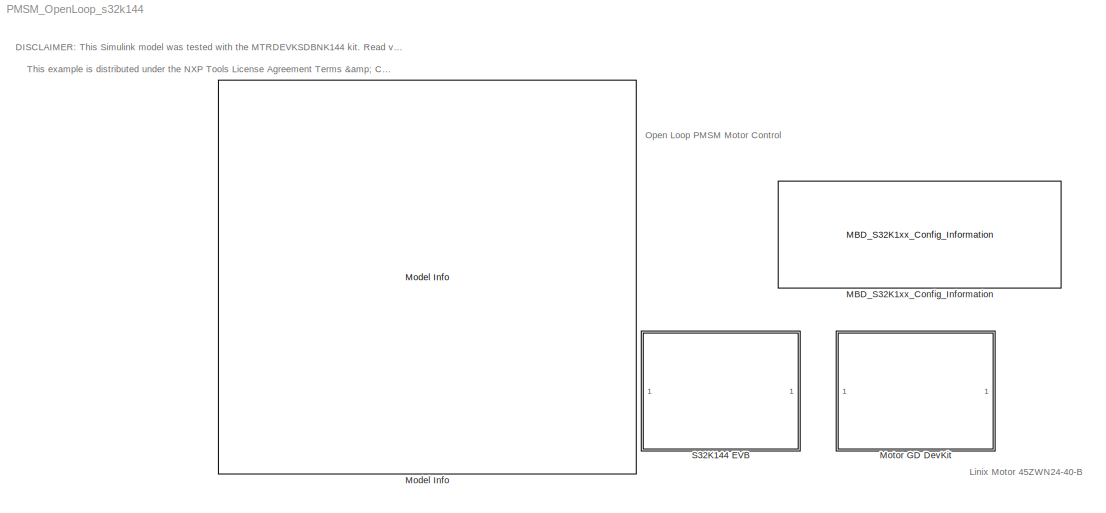
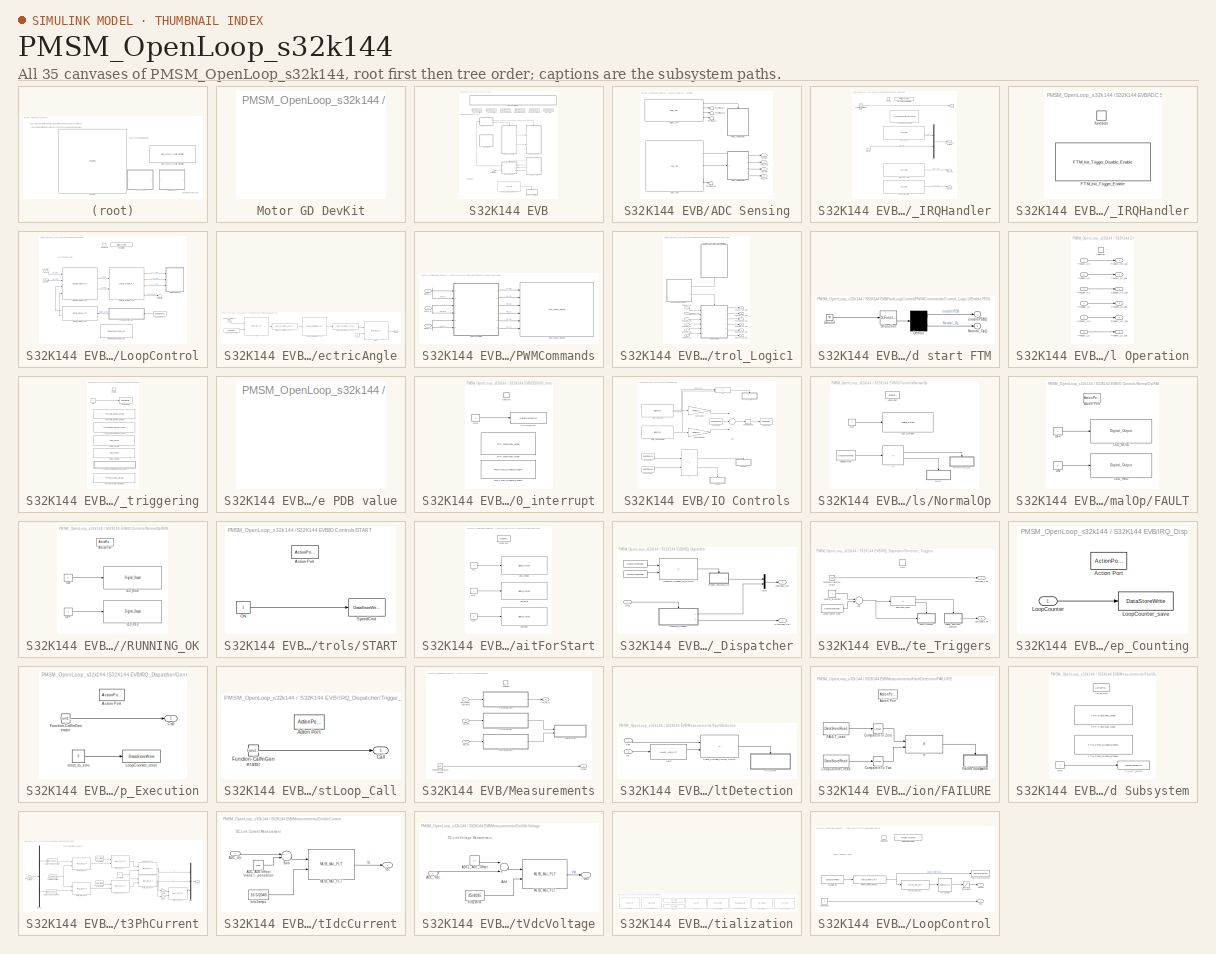
[diagram: thumbnail index - all 35 canvases of the model, root first then tree order]
MODEL PMSM_OpenLoop_s32k144
KIND model
CONFIG InitFcn = mbd_s32k_consistency_checks(bdroot(gcs));
BLOCK [Reference] MBD_S32K1xx_Config_Information  REF=mbd_s32k1xx_ec_toolbox/MBD_S32K1xx_Config_Information
  ADC_PcrCheckEnDis = on
  AMMCLIB_PcrCheckEnDis = on
  CMP_PcrCheckEnDis = on
  CSEc_PcrCheckEnDis = on
  ConfigParams_PcrCheckEnDis = on
  FM_PcrCheckEnDis = on
  FTM_Dual_Edge_Inputs_PcrCheckEnDis = on
  FTM_Hall_Sensor_Inputs_PcrCheckEnDis = on
  FTM_Input_Edge_Inputs_PcrCheckEnDis = on
  FTM_PWM_PcrCheckEnDis = on
  FTM_Quadrature_Inputs_PcrCheckEnDis = on
  FlexCAN_PcrCheckEnDis = on
  FlexIO_PcrCheckEnDis = on
  GPIO_InputPcrCheckEnDis = on
  GPIO_OutputPcrCheckEnDis = on
  LIN_PcrCheckEnDis = on
  LPI2C_PcrCheckEnDis = on
  LPSPI_PcrCheckEnDis = on
  LPTMR_PcrCheckEnDis = on
  LPUART_PcrCheckEnDis = on
  ModelRef_PcrCheckEnDis = on
  PDB0_PcrCheckEnDis = on
  PIT_PcrCheckEnDis = on
  Ports = []
  Profile_PcrCheckEnDis = on
  RTC_PcrCheckEnDis = on
  SBC_PcrCheckEnDis = on
  SID = 3303
  SourceBlock = mbd_s32k1xx_ec_toolbox/MBD_S32K1xx_Config_Information
  SourceType = MBDTBX_EC_S32K
  WDOG_PcrCheckEnDis = on
  config_params = []
  disp_str = Target : S32K144-64KB_SRAM\nPackage : 100-pin\nSystem clock : 80 MHz\nXTAL clock : External 8 MHz\nCompiler : IAR\nTarget Type : FLASH\nDownload Code after build : off\nStep Tick Interrupt Priority : 15
  ds_import_enable = on
  eDMA_PcrCheckEnDis = on
  gcc_target_assemble_opts = -mcpu=cortex-m4 -mthumb -mfloat-abi=hard -mfpu=fpv4-sp-d16 -g
  gcc_target_compile_opts = -mcpu=cortex-m4 -mthumb -mfloat-abi=hard -mfpu=fpv4-sp-d16 -O1 -g -gstrict-dwarf
  gcc_target_default_lcf = on
  gcc_target_link_opts = -mcpu=cortex-m4 -mthumb -mfloat-abi=hard -mfpu=fpv4-sp-d16
  gcc_target_user_lcf = S32K144_64_flash.ld
  ghs_target_assemble_opts = -cpu=cortexm4f -fpu=vfpv4_d16
  ghs_target_compile_opts = -cpu=cortexm4f -thumb -DARM_MATH_CM4 -fpu=vfpv4_d16 -fsingle -Ogeneral -Wundef -Wimplicit-int -Wshadow -Wtrigraphs --no_commons --gnu_asm -gnu99 -gdwarf-2 -G
  ghs_target_default_lcf = on
  ghs_target_link_opts = -cpu=cortexm4f -thumb -fpu=vfpv4_d16
  ghs_target_user_lcf = S32K144_64_flash.ld
  iar_target_assemble_opts = --cpu Cortex-M4F --thumb --fpu VFPv4_sp
  iar_target_compile_opts = --cpu=Cortex-M4F --thumb --fpu=VFPv4_sp -Ol -e --debug --dlib_config normal
  iar_target_default_lcf = on
  iar_target_link_opts = --no_exceptions --vfe --inline
  iar_target_user_lcf = S32K144_64_flash.icf
  mbdt_ver = 0
  mcu_steptick_prio = 10
  mcu_steptick_timer = LPIT Channel 0
  mcu_system_clock_freq = 80
  mcu_target_name = S32K144
  mcu_target_package = 64-LQFP
  mcu_target_sram_size = 64KB
  mcu_xtal_freq = External 8
  pil_download_enable = off
  pil_download_rate = 57600
  pil_opensda_drive = Custom
  pil_opensda_drive_custom = D
  pil_uart_instance = 1
  pil_uart_rx = PTC6: [LPUART1_RX | Receive]
  pil_uart_tx = PTC7: [LPUART1_TX | Transmit]
  rbl_com_port = Custom
  rbl_com_port_custom = COM1
  rbl_download_enable = on
  rbl_download_interface = OpenSDA
  rbl_restart_request = off
  rbl_start_delay = 5000
  target_compiler = GCC
  target_memory = FLASH
BLOCK [Reference] Model Info  REF=simulink/Model-Wide\nUtilities/Model Info
  DisplayStringWithTags = Model Name: %<ModelName>\n\nDescription: %<Description>
  Frame = off
  HorizontalTextAlignment = Left
  LeftAlignmentValue = 0.02
  MaskDisplayString = Model Name: PMSM_OpenLoop_s32k144\\n\\nDescription: Open Loop PMSM example for S32K144 and DevKit MotorGD. \\nThis Simulink model is designed to work with Linix 45ZWN24-40 Motor and validate\\nthat the motor can be rotated in V/f open loop method. The main scope of \\nthe model is to validate the 3-phase current measurements. \\n\\nFEATURES:\\n- Speed command is read via SW2 (CW direction) or SW3 ...<+1399ch>
  Ports = []
  SID = 1384
  SourceBlock = simulink/Model-Wide\nUtilities/Model Info
  SourceProductBaseCode = SL
  SourceProductName = Simulink
  SourceType = CMBlock
BLOCK [SubSystem] Motor GD DevKit
  Ports = []
  RequestExecContextInheritance = off
  SID = 467
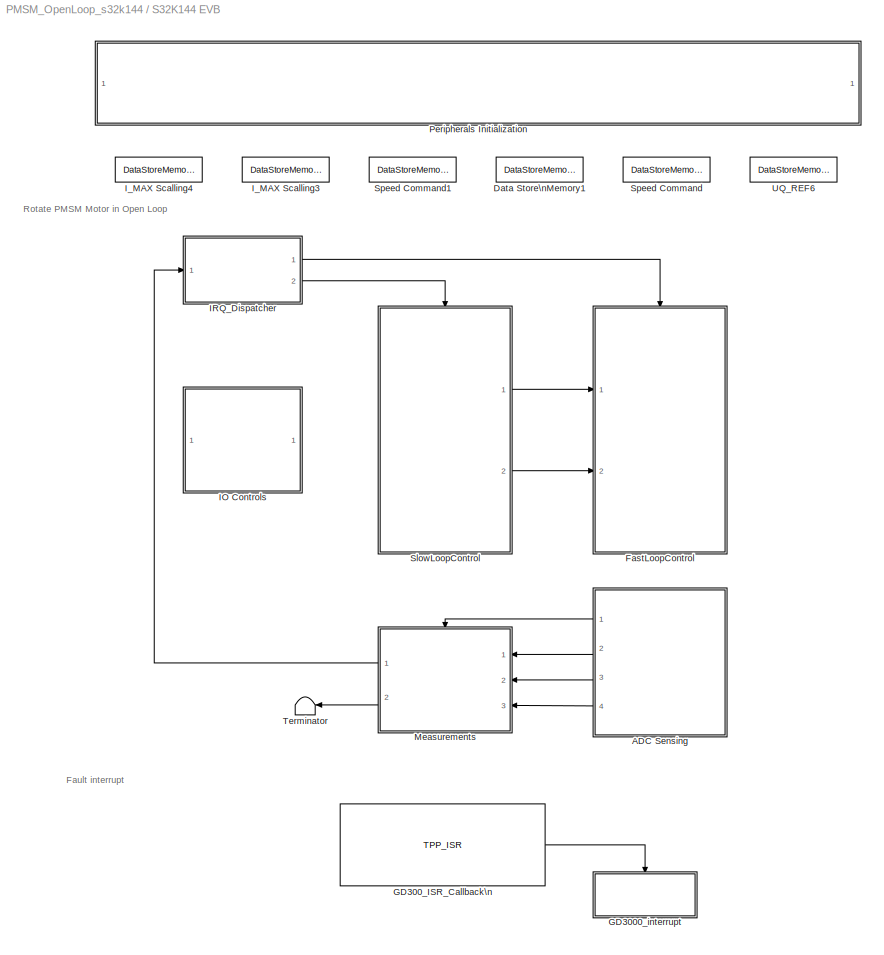
BLOCK [SubSystem] S32K144 EVB
  Ports = []
  RequestExecContextInheritance = off
  SID = 229
BLOCK [SubSystem] S32K144 EVB/ADC Sensing
  Ports = [0, 4]
  RequestExecContextInheritance = off
  SID = 3351
BLOCK [SubSystem] S32K144 EVB/ADC Sensing/ADC1_IRQHandler
  Ports = [1, 4, 0, 1]
  RequestExecContextInheritance = off
  SID = 3352
  TreatAsAtomicUnit = on
BLOCK [Reference] S32K144 EVB/ADC Sensing/ADC1_IRQHandler/ADC_AD4_IA  REF=mbd_s32k1xx_ec_toolbox/Motor Control Blocks/ADC Blocks/ADC_Start
  Ports = [0, 1]
  Priority = 2
  SID = 3867
  SourceBlock = mbd_s32k1xx_ec_toolbox/Motor Control Blocks/ADC Blocks/ADC_Start
  SourceType = adc_s32k_start_block
  adc_chan = PTB0: [ADC0_SE4 | ADC Single Ended Input]
  adc_r = A
  aien = off
  instance = 0
  mcuTargetUpdate = on
BLOCK [Reference] S32K144 EVB/ADC Sensing/ADC1_IRQHandler/ADC_AD6_IDC  REF=mbd_s32k1xx_ec_toolbox/Motor Control Blocks/ADC Blocks/ADC_Start
  Ports = [0, 1]
  Priority = 4
  SID = 3868
  SourceBlock = mbd_s32k1xx_ec_toolbox/Motor Control Blocks/ADC Blocks/ADC_Start
  SourceType = adc_s32k_start_block
  adc_chan = PTD4: [ADC1_SE6 | ADC Single Ended Input]
  adc_r = B
  aien = off
  instance = 1
  mcuTargetUpdate = on
BLOCK [Reference] S32K144 EVB/ADC Sensing/ADC1_IRQHandler/ADC_AD7_VDC  REF=mbd_s32k1xx_ec_toolbox/Motor Control Blocks/ADC Blocks/ADC_Start
  Ports = [0, 1]
  Priority = 3
  SID = 3869
  SourceBlock = mbd_s32k1xx_ec_toolbox/Motor Control Blocks/ADC Blocks/ADC_Start
  SourceType = adc_s32k_start_block
  adc_chan = PTB12: [ADC1_SE7 | ADC Single Ended Input]
  adc_r = A
  aien = off
  instance = 1
  mcuTargetUpdate = on
BLOCK [Inport] S32K144 EVB/ADC Sensing/ADC1_IRQHandler/ADC_IB
  IconDisplay = Port number
  SID = 3865
BLOCK [Reference] S32K144 EVB/ADC Sensing/ADC1_IRQHandler/ADC_IRQHandlerProfiler  REF=mbd_s32k1xx_ec_toolbox/Utility Blocks/Profiler_Function
  Ports = []
  SID = 3870
  SourceBlock = mbd_s32k1xx_ec_toolbox/Utility Blocks/Profiler_Function
  SourceType = profiler_s32k_func
  profile_indx = 0
  showOut = off
BLOCK [Outport] S32K144 EVB/ADC Sensing/ADC1_IRQHandler/ADC_Idc
  IconDisplay = Port number
  Port = 4
  SID = 3877
BLOCK [Outport] S32K144 EVB/ADC Sensing/ADC1_IRQHandler/ADC_Phase_Currents
  IconDisplay = Port number
  Port = 2
  SID = 3875
BLOCK [Outport] S32K144 EVB/ADC Sensing/ADC1_IRQHandler/ADC_Vdc
  IconDisplay = Port number
  Port = 3
  SID = 3876
BLOCK [Reference] S32K144 EVB/ADC Sensing/ADC1_IRQHandler/FTM_Init_Trigger_Disable  REF=mbd_s32k1xx_ec_toolbox/Motor Control Blocks/FTM Blocks/FTM_Init_Trigger_Disable_Enable
  Ports = []
  Priority = 2
  SID = 3871
  SourceBlock = mbd_s32k1xx_ec_toolbox/Motor Control Blocks/FTM Blocks/FTM_Init_Trigger_Disable_Enable
  SourceType = FTM_s32k_init_disen
  action = Disable
  ftmModule = 3
BLOCK [Outport] S32K144 EVB/ADC Sensing/ADC1_IRQHandler/FcnCall
  IconDisplay = Port number
  SID = 3874
BLOCK [Reference] S32K144 EVB/ADC Sensing/ADC1_IRQHandler/Function-Call\nGenerator  REF=simulink/Ports &\nSubsystems/Function-Call\nGenerator
  Ports = [0, 1]
  SID = 3872
  SourceBlock = simulink/Ports &\nSubsystems/Function-Call\nGenerator
  SourceProductBaseCode = SL
  SourceProductName = Simulink
  SourceType = Function-Call Generator
  numberOfIterations = 1
  sample_time = -1
BLOCK [Mux] S32K144 EVB/ADC Sensing/ADC1_IRQHandler/Mux
  DisplayOption = bar
  Inputs = 2
  Ports = [2, 1]
  SID = 3873
BLOCK [TriggerPort] S32K144 EVB/ADC Sensing/ADC1_IRQHandler/function
  Ports = []
  SID = 3866
  StatesWhenEnabling = held
  TriggerType = function-call
  VariantControl = (inherit)
BLOCK [Reference] S32K144 EVB/ADC Sensing/ADC1_ISR  REF=mbd_s32k1xx_ec_toolbox/Motor Control Blocks/ADC Blocks/ADC_ISR
  Ports = [0, 3]
  SID = 3370
  SourceBlock = mbd_s32k1xx_ec_toolbox/Motor Control Blocks/ADC Blocks/ADC_ISR
  SourceType = adc_s32k_isr_block
  instance = 1
  pri = 1
  sc1n = C
BLOCK [Outport] S32K144 EVB/ADC Sensing/ADC_IaIb
  IconDisplay = Port number
  Port = 2
  SID = 3384
BLOCK [Outport] S32K144 EVB/ADC Sensing/ADC_Idc
  IconDisplay = Port number
  Port = 4
  SID = 3386
BLOCK [Outport] S32K144 EVB/ADC Sensing/ADC_Vdc
  IconDisplay = Port number
  Port = 3
  SID = 3385
BLOCK [Outport] S32K144 EVB/ADC Sensing/FcnCall
  IconDisplay = Port number
  SID = 3383
BLOCK [SubSystem] S32K144 EVB/ADC Sensing/PDB1_IRQHandler
  Ports = [0, 0, 0, 1]
  RequestExecContextInheritance = off
  SID = 3371
  TreatAsAtomicUnit = on
BLOCK [Reference] S32K144 EVB/ADC Sensing/PDB1_IRQHandler/FTM_Init_Trigger_Enable  REF=mbd_s32k1xx_ec_toolbox/Motor Control Blocks/FTM Blocks/FTM_Init_Trigger_Disable_Enable
  Ports = []
  SID = 3375
  SourceBlock = mbd_s32k1xx_ec_toolbox/Motor Control Blocks/FTM Blocks/FTM_Init_Trigger_Disable_Enable
  SourceType = FTM_s32k_init_disen
  action = Enable
  ftmModule = 3
BLOCK [TriggerPort] S32K144 EVB/ADC Sensing/PDB1_IRQHandler/function
  Ports = []
  SID = 3372
  StatesWhenEnabling = held
  TriggerType = function-call
  VariantControl = (inherit)
BLOCK [Reference] S32K144 EVB/ADC Sensing/PDB1_ISR  REF=mbd_s32k1xx_ec_toolbox/Motor Control Blocks/PDB Blocks/PDB_ISR
  Ports = [0, 4]
  Priority = 8
  SID = 3378
  SourceBlock = mbd_s32k1xx_ec_toolbox/Motor Control Blocks/PDB Blocks/PDB_ISR
  SourceType = pdb_s32k_isr_block
  pdbModule = 1
  prioInterrupt = 2
  regIdlyIdly = 4999
  regScPdbeie = off
  regScPdbie = on
BLOCK [Terminator] S32K144 EVB/ADC Sensing/Terminator
  SID = 3379
BLOCK [Terminator] S32K144 EVB/ADC Sensing/Terminator1
  SID = 3380
BLOCK [Terminator] S32K144 EVB/ADC Sensing/Terminator2
  SID = 3381
BLOCK [Terminator] S32K144 EVB/ADC Sensing/Terminator6
  SID = 3382
BLOCK [DataStoreMemory] S32K144 EVB/Data Store\nMemory1
  DataStoreName = LoopCounter
  OutDataTypeStr = uint16
  ReadBeforeWriteMsg = warning
  SID = 3669
  ShowAdditionalParam = off
  WriteAfterReadMsg = warning
  WriteAfterWriteMsg = warning
BLOCK [SubSystem] S32K144 EVB/FastLoopControl
  Ports = [2, 0, 0, 1]
  RTWFcnNameOpts = Use subsystem name
  RTWSystemCode = Nonreusable function
  RequestExecContextInheritance = off
  SID = 3387
BLOCK [SubSystem] S32K144 EVB/FastLoopControl/ComputeElectricAngle
  Ports = [1, 1]
  RTWFcnNameOpts = Use subsystem name
  RTWSystemCode = Nonreusable function
  RequestExecContextInheritance = off
  SID = 3391
  TreatAsAtomicUnit = on
BLOCK [Reference] S32K144 EVB/FastLoopControl/ComputeElectricAngle/DIV  REF=ammclib_bam_s32k14x/MLIB/bam_flt/MLIB_Div_FLT  (lib defined in mdl_f341c9dd7fd9)
  Ports = [2, 1]
  SID = 3393
  SourceBlock = ammclib_bam_s32k14x/MLIB/bam_flt/MLIB_Div_FLT
  SourceType = MLIB_Div_FLT
BLOCK [Reference] S32K144 EVB/FastLoopControl/ComputeElectricAngle/GFLIB_IntegratorTR_F32  REF=ammclib_bam_s32k14x/GFLIB/bam_f32/GFLIB_IntegratorTR_F32  (lib defined in mdl_f341c9dd7fd9)
  Ports = [1, 1]
  SID = 3394
  SourceBlock = ammclib_bam_s32k14x/GFLIB/bam_f32/GFLIB_IntegratorTR_F32
  SourceType = GFLIB_IntegratorTR_F32
  f32C1 = (2*pi/60)*PP*Nmax*(C_LST/2/pi)*(2^31)
  u16NShift = 0
BLOCK [Reference] S32K144 EVB/FastLoopControl/ComputeElectricAngle/MLIB_ConvertPU_F32FLT  REF=ammclib_bam_s32k14x/MLIB/bam_f32/MLIB_ConvertPU_F32FLT  (lib defined in mdl_f341c9dd7fd9)
  Ports = [1, 1]
  SID = 3395
  SourceBlock = ammclib_bam_s32k14x/MLIB/bam_f32/MLIB_ConvertPU_F32FLT
  SourceType = MLIB_ConvertPU_F32
BLOCK [Reference] S32K144 EVB/FastLoopControl/ComputeElectricAngle/MLIB_ConvertPU_FLTF32  REF=ammclib_bam_s32k14x/MLIB/bam_flt/MLIB_ConvertPU_FLTF32  (lib defined in mdl_f341c9dd7fd9)
  Ports = [1, 1]
  SID = 3396
  SourceBlock = ammclib_bam_s32k14x/MLIB/bam_flt/MLIB_ConvertPU_FLTF32
  SourceType = MLIB_ConvertPU_FLT
BLOCK [Reference] S32K144 EVB/FastLoopControl/ComputeElectricAngle/MUL  REF=ammclib_bam_s32k14x/MLIB/bam_flt/MLIB_Mul_FLT  (lib defined in mdl_f341c9dd7fd9)
  Ports = [2, 1]
  SID = 3397
  SourceBlock = ammclib_bam_s32k14x/MLIB/bam_flt/MLIB_Mul_FLT
  SourceType = MLIB_Mul_FLT
BLOCK [Constant] S32K144 EVB/FastLoopControl/ComputeElectricAngle/SpeedMax_rad//s
  OutDataTypeStr = Inherit: Inherit via back propagation
  SID = 3398
  Value = Nmax*(2*pi/60)
BLOCK [Inport] S32K144 EVB/FastLoopControl/ComputeElectricAngle/Speed_Reference [rad//s]
  IconDisplay = Port number
  SID = 3392
BLOCK [Constant] S32K144 EVB/FastLoopControl/ComputeElectricAngle/pi
  OutDataTypeStr = Inherit: Inherit via back propagation
  SID = 3399
  Value = pi
BLOCK [Outport] S32K144 EVB/FastLoopControl/ComputeElectricAngle/theta
  IconDisplay = Port number
  OutDataTypeStr = single
  SID = 3400
  SignalType = real
  VarSizeSig = No
BLOCK [Reference] S32K144 EVB/FastLoopControl/FOCProfiler  REF=mbd_s32k1xx_ec_toolbox/Utility Blocks/Profiler_Function
  Ports = []
  SID = 3401
  SourceBlock = mbd_s32k1xx_ec_toolbox/Utility Blocks/Profiler_Function
  SourceType = profiler_s32k_func
  profile_indx = 2
  showOut = off
BLOCK [TriggerPort] S32K144 EVB/FastLoopControl/FastLoop
  Ports = []
  SID = 3390
  StatesWhenEnabling = held
  TriggerType = function-call
  VariantControl = (inherit)
BLOCK [Reference] S32K144 EVB/FastLoopControl/FreeMaster_Recorder_Call  REF=mbd_s32k1xx_ec_toolbox/Utility Blocks/FreeMaster_Recorder_Call
  Ports = []
  SID = 3402
  SourceBlock = mbd_s32k1xx_ec_toolbox/Utility Blocks/FreeMaster_Recorder_Call
  SourceType = fm_s32k_recorder_call
BLOCK [Reference] S32K144 EVB/FastLoopControl/GFLIB_SinCos_FLT  REF=ammclib_bam_s32k14x/GFLIB/bam_flt/GFLIB_SinCos_FLT  (lib defined in mdl_f341c9dd7fd9)
  Ports = [1, 2]
  SID = 3403
  SourceBlock = ammclib_bam_s32k14x/GFLIB/bam_flt/GFLIB_SinCos_FLT
  SourceType = GFLIB_SinCos_FLT
BLOCK [Reference] S32K144 EVB/FastLoopControl/GMCLIB_ParkInv_FLT  REF=ammclib_bam_s32k14x/GMCLIB/bam_flt/GMCLIB_ParkInv_FLT  (lib defined in mdl_f341c9dd7fd9)
  Ports = [4, 2]
  SID = 3404
  SourceBlock = ammclib_bam_s32k14x/GMCLIB/bam_flt/GMCLIB_ParkInv_FLT
  SourceType = GMCLIB_ParkInv_FLT
BLOCK [Reference] S32K144 EVB/FastLoopControl/GMCLIB_SvmStd_FLT  REF=ammclib_bam_s32k14x/GMCLIB/bam_flt/GMCLIB_SvmStd_FLT  (lib defined in mdl_f341c9dd7fd9)
  Ports = [2, 4]
  SID = 3405
  SourceBlock = ammclib_bam_s32k14x/GMCLIB/bam_flt/GMCLIB_SvmStd_FLT
  SourceType = GMCLIB_SvmStd_FLT
BLOCK [SubSystem] S32K144 EVB/FastLoopControl/PWMCommands
  Ports = [3]
  RequestExecContextInheritance = off
  SID = 3406
BLOCK [SubSystem] S32K144 EVB/FastLoopControl/PWMCommands/Control_Logic1
  Ports = [6, 6]
  RequestExecContextInheritance = off
  SID = 3881
BLOCK [SubSystem] S32K144 EVB/FastLoopControl/PWMCommands/Control_Logic1/Enable PDB and start FTM
  ErrorFcn = Stateflow.Translate.translate
  PermitHierarchicalResolution = ExplicitOnly
  Ports = [0, 2]
  RequestExecContextInheritance = off
  SFBlockType = Chart
  SID = 3888
  TreatAsAtomicUnit = on
BLOCK [Demux] S32K144 EVB/FastLoopControl/PWMCommands/Control_Logic1/Enable PDB and start FTM/ Demux 
  Outputs = 2
  Ports = [1, 2]
  SID = 3888::33
BLOCK [Ground] S32K144 EVB/FastLoopControl/PWMCommands/Control_Logic1/Enable PDB and start FTM/ Ground 
  SID = 3888::34
BLOCK [S-Function] S32K144 EVB/FastLoopControl/PWMCommands/Control_Logic1/Enable PDB and start FTM/ SFunction 
  EnableBusSupport = on
  FunctionName = sf_sfun
  PortCounts = [1 1]
  Ports = [1, 1]
  SFcnIsStateOwnerBlock = off
  SFunctionDeploymentMode = off
  SID = 3888::32
  Tag = Stateflow S-Function PMSM_OpenLoop_s32k144 2
BLOCK [Outport] S32K144 EVB/FastLoopControl/PWMCommands/Control_Logic1/Enable PDB and start FTM/Normal_Op()
  IconDisplay = Port number
  Port = 2
  SID = 3888::9
BLOCK [Outport] S32K144 EVB/FastLoopControl/PWMCommands/Control_Logic1/Enable PDB and start FTM/enablePDB()
  IconDisplay = Port number
  SID = 3888::28
BLOCK [SubSystem] S32K144 EVB/FastLoopControl/PWMCommands/Control_Logic1/Normal Operation
  Ports = [6, 6, 0, 1]
  RequestExecContextInheritance = off
  SID = 3889
  TreatAsAtomicUnit = on
BLOCK [Inport] S32K144 EVB/FastLoopControl/PWMCommands/Control_Logic1/Normal Operation/PhaseA_HS
  IconDisplay = Port number
  SID = 3890
BLOCK [Outport] S32K144 EVB/FastLoopControl/PWMCommands/Control_Logic1/Normal Operation/PhaseA_HS_out
  IconDisplay = Port number
  SID = 3897
BLOCK [Inport] S32K144 EVB/FastLoopControl/PWMCommands/Control_Logic1/Normal Operation/PhaseA_LS
  IconDisplay = Port number
  Port = 2
  SID = 3891
BLOCK [Outport] S32K144 EVB/FastLoopControl/PWMCommands/Control_Logic1/Normal Operation/PhaseA_LS_out
  IconDisplay = Port number
  Port = 2
  SID = 3898
BLOCK [Inport] S32K144 EVB/FastLoopControl/PWMCommands/Control_Logic1/Normal Operation/PhaseB_HS
  IconDisplay = Port number
  Port = 3
  SID = 3892
BLOCK [Outport] S32K144 EVB/FastLoopControl/PWMCommands/Control_Logic1/Normal Operation/PhaseB_HS_out
  IconDisplay = Port number
  Port = 3
  SID = 3899
BLOCK [Inport] S32K144 EVB/FastLoopControl/PWMCommands/Control_Logic1/Normal Operation/PhaseB_LS
  IconDisplay = Port number
  Port = 4
  SID = 3893
BLOCK [Outport] S32K144 EVB/FastLoopControl/PWMCommands/Control_Logic1/Normal Operation/PhaseB_LS_out
  IconDisplay = Port number
  Port = 4
  SID = 3900
BLOCK [Inport] S32K144 EVB/FastLoopControl/PWMCommands/Control_Logic1/Normal Operation/PhaseC_HS
  IconDisplay = Port number
  Port = 5
  SID = 3894
BLOCK [Outport] S32K144 EVB/FastLoopControl/PWMCommands/Control_Logic1/Normal Operation/PhaseC_HS_out
  IconDisplay = Port number
  Port = 5
  SID = 3901
BLOCK [Inport] S32K144 EVB/FastLoopControl/PWMCommands/Control_Logic1/Normal Operation/PhaseC_LS
  IconDisplay = Port number
  Port = 6
  SID = 3895
BLOCK [Outport] S32K144 EVB/FastLoopControl/PWMCommands/Control_Logic1/Normal Operation/PhaseC_LS_out
  IconDisplay = Port number
  Port = 6
  SID = 3902
BLOCK [TriggerPort] S32K144 EVB/FastLoopControl/PWMCommands/Control_Logic1/Normal Operation/function
  Ports = []
  SID = 3896
  StatesWhenEnabling = held
  TriggerType = function-call
  VariantControl = (inherit)
BLOCK [Inport] S32K144 EVB/FastLoopControl/PWMCommands/Control_Logic1/PhaseA_HS
  IconDisplay = Port number
  SID = 3882
BLOCK [Outport] S32K144 EVB/FastLoopControl/PWMCommands/Control_Logic1/PhaseA_HS_out
  IconDisplay = Port number
  SID = 3913
BLOCK [Inport] S32K144 EVB/FastLoopControl/PWMCommands/Control_Logic1/PhaseA_LS
  IconDisplay = Port number
  Port = 2
  SID = 3883
BLOCK [Outport] S32K144 EVB/FastLoopControl/PWMCommands/Control_Logic1/PhaseA_LS_out
  IconDisplay = Port number
  Port = 2
  SID = 3914
BLOCK [Inport] S32K144 EVB/FastLoopControl/PWMCommands/Control_Logic1/PhaseB_HS
  IconDisplay = Port number
  Port = 3
  SID = 3884
BLOCK [Outport] S32K144 EVB/FastLoopControl/PWMCommands/Control_Logic1/PhaseB_HS_out
  IconDisplay = Port number
  Port = 3
  SID = 3915
BLOCK [Inport] S32K144 EVB/FastLoopControl/PWMCommands/Control_Logic1/PhaseB_LS
  IconDisplay = Port number
  Port = 4
  SID = 3885
BLOCK [Outport] S32K144 EVB/FastLoopControl/PWMCommands/Control_Logic1/PhaseB_LS_out
  IconDisplay = Port number
  Port = 4
  SID = 3916
BLOCK [Inport] S32K144 EVB/FastLoopControl/PWMCommands/Control_Logic1/PhaseC_HS
  IconDisplay = Port number
  Port = 5
  SID = 3886
BLOCK [Outport] S32K144 EVB/FastLoopControl/PWMCommands/Control_Logic1/PhaseC_HS_out
  IconDisplay = Port number
  Port = 5
  SID = 3917
BLOCK [Inport] S32K144 EVB/FastLoopControl/PWMCommands/Control_Logic1/PhaseC_LS
  IconDisplay = Port number
  Port = 6
  SID = 3887
BLOCK [Outport] S32K144 EVB/FastLoopControl/PWMCommands/Control_Logic1/PhaseC_LS_out
  IconDisplay = Port number
  Port = 6
  SID = 3918
BLOCK [SubSystem] S32K144 EVB/FastLoopControl/PWMCommands/Control_Logic1/enable_FTM_PDB_ADC_triggering
  Ports = [0, 0, 0, 1]
  RTWSystemCode = Inline
  RequestExecContextInheritance = off
  SID = 3903
  TreatAsAtomicUnit = on
BLOCK [SubSystem] S32K144 EVB/FastLoopControl/PWMCommands/Control_Logic1/enable_FTM_PDB_ADC_triggering/Custom code to reload the PDB value
  CopyFcn = cccopyfcn(gcb)
  OpenFcn = ccopenfcn('System Outputs Function')
  Ports = []
  Priority = 6
  RequestExecContextInheritance = off
  SID = 3905
BLOCK [Reference] S32K144 EVB/FastLoopControl/PWMCommands/Control_Logic1/enable_FTM_PDB_ADC_triggering/FTM_Init_Trigger_Disable_Enable  REF=mbd_s32k1xx_ec_toolbox/Motor Control Blocks/FTM Blocks/FTM_Init_Trigger_Disable_Enable
  Ports = []
  Priority = 3
  SID = 3906
  SourceBlock = mbd_s32k1xx_ec_toolbox/Motor Control Blocks/FTM Blocks/FTM_Init_Trigger_Disable_Enable
  SourceType = FTM_s32k_init_disen
  action = Enable
  ftmModule = 3
BLOCK [Reference] S32K144 EVB/FastLoopControl/PWMCommands/Control_Logic1/enable_FTM_PDB_ADC_triggering/FTM_PWM_Disable_Enable  REF=mbd_s32k1xx_ec_toolbox/Motor Control Blocks/FTM Blocks/FTM_PWM_Disable_Enable
  Ports = []
  Priority = 1
  SID = 3907
  SourceBlock = mbd_s32k1xx_ec_toolbox/Motor Control Blocks/FTM Blocks/FTM_PWM_Disable_Enable
  SourceType = FTM_s32k_pwm_disen
  action = Enable
  ftmModule = 3
BLOCK [Constant] S32K144 EVB/FastLoopControl/PWMCommands/Control_Logic1/enable_FTM_PDB_ADC_triggering/ON
  OutDataTypeStr = boolean
  Priority = 2
  SID = 3908
BLOCK [Reference] S32K144 EVB/FastLoopControl/PWMCommands/Control_Logic1/enable_FTM_PDB_ADC_triggering/PDB0_Enable  REF=mbd_s32k1xx_ec_toolbox/Motor Control Blocks/PDB Blocks/PDB_Enable
  Ports = []
  Priority = 4
  SID = 3909
  SourceBlock = mbd_s32k1xx_ec_toolbox/Motor Control Blocks/PDB Blocks/PDB_Enable
  SourceType = pdb_s32k_enable_block
  pdbAction = Enable
  pdbModule = 0
BLOCK [Reference] S32K144 EVB/FastLoopControl/PWMCommands/Control_Logic1/enable_FTM_PDB_ADC_triggering/PDB1_Enable  REF=mbd_s32k1xx_ec_toolbox/Motor Control Blocks/PDB Blocks/PDB_Enable
  Ports = []
  Priority = 5
  SID = 3910
  SourceBlock = mbd_s32k1xx_ec_toolbox/Motor Control Blocks/PDB Blocks/PDB_Enable
  SourceType = pdb_s32k_enable_block
  pdbAction = Enable
  pdbModule = 1
BLOCK [DataStoreWrite] S32K144 EVB/FastLoopControl/PWMCommands/Control_Logic1/enable_FTM_PDB_ADC_triggering/SpeedCmd 
  DataStoreName = READY
  Ports = [1]
  SID = 3911
BLOCK [Reference] S32K144 EVB/FastLoopControl/PWMCommands/Control_Logic1/enable_FTM_PDB_ADC_triggering/TPP_ISR_Enable_Disable\n1  REF=mbd_msd_ec_toolbox/TPP/TPP_ISR_Enable_Disable
  Ports = []
  Priority = 7
  SID = 3912
  SourceBlock = mbd_msd_ec_toolbox/TPP/TPP_ISR_Enable_Disable
  SourceType = tpp_s32k_int_en_dis
  mcuTppIntEn = on
  prioInt = 15
  tppInstance = 0
BLOCK [TriggerPort] S32K144 EVB/FastLoopControl/PWMCommands/Control_Logic1/enable_FTM_PDB_ADC_triggering/function
  Ports = []
  SID = 3904
  StatesWhenEnabling = held
  TriggerType = function-call
  VariantControl = (inherit)
BLOCK [Reference] S32K144 EVB/FastLoopControl/PWMCommands/FTM_PWM_Config  REF=mbd_s32k1xx_ec_toolbox/Motor Control Blocks/FTM Blocks/FTM_PWM_Config
  Ports = [6]
  SID = 3485
  SourceBlock = mbd_s32k1xx_ec_toolbox/Motor Control Blocks/FTM Blocks/FTM_PWM_Config
  SourceType = FTM_s32k_pwm_config_block
  chTrigger0 = off
  chTrigger1 = off
  chTrigger2 = off
  chTrigger3 = off
  chTrigger4 = off
  chTrigger5 = off
  chTrigger6 = off
  chTrigger7 = off
  chan0En = on
  chan0Type = Independent
  chan2En = on
  chan2Type = Independent
  chan4En = on
  chan4Type = Independent
  chan6En = off
  chan6Type = Independent
  chnMatch0 = off
  chnMatch1 = off
  chnMatch2 = off
  chnMatch3 = off
  chnMatch4 = off
  chnMatch5 = off
  chnMatch6 = off
  chnMatch7 = off
  deadtimeNs = 0
  deadtimePrescaler = Divide by 1
  deadtimeTicks = 0
  deadtimeUnits = Nanoseconds
  dutyCycleCh0 = 0
  dutyCycleCh1 = 0
  dutyCycleCh2 = 0
  dutyCycleCh3 = 0
  dutyCycleCh4 = 0
  dutyCycleCh5 = 0
  dutyCycleCh6 = 0.25
  dutyCycleCh7 = 0.25
  dutyCycleSim = off
  fault_disen_0 = off
  fault_disen_1 = off
  fault_disen_2 = off
  fault_disen_3 = off
  fault_filter_0 = off
  fault_filter_1 = off
  fault_filter_2 = off
  fault_filter_3 = off
  fault_pin_0 = None
  fault_pin_1 = None
  fault_pin_2 = None
  fault_pin_3 = None
  fault_polarity_0 = Active High
  fault_polarity_1 = Active high
  fault_polarity_2 = Active high
  fault_polarity_3 = Active high
  ftmMode = Center-Aligned PWM
  ftmModule = 3
  ftmPeriod = 4000
  ftmPrescaler = Divide by 1
  ftmPwmUnits = Hz
  ftmSourceClock = 80 MHz
  initTrigger = off
  mcuTargetUpdate = on
  outFrequency = 20000
  outputComplem0 = Main duplicated
  outputComplem2 = Main duplicated
  outputComplem4 = Main duplicated
  outputComplem6 = Main duplicated
  outputLevel0 = Low
  outputLevel1 = Low
  outputLevel2 = Low
  outputLevel3 = Low
  outputLevel4 = Low
  outputLevel5 = Low
  outputLevel6 = Low
  outputLevel7 = Low
  pinFtmCh0 = PTB8: [FTM3_CH0 | FTM Channel]
  pinFtmCh1 = PTB9: [FTM3_CH1 | FTM Channel]
  pinFtmCh2 = PTB10: [FTM3_CH2 | FTM Channel]
  pinFtmCh3 = PTB11: [FTM3_CH3 | FTM Channel]
  pinFtmCh4 = PTC10: [FTM3_CH4 | FTM Channel]
  pinFtmCh5 = PTC11: [FTM3_CH5 | FTM Channel]
  pinFtmCh6 = PTC12: [FTM3_CH6 | FTM Channel]
  pinFtmCh7 = None
  pinPolCh0 = Active Low
  pinPolCh1 = Active Low
  pinPolCh2 = Active Low
  pinPolCh3 = Active Low
  pinPolCh4 = Active Low
  pinPolCh5 = Active Low
  pinPolCh6 = Active Low
  pinPolCh7 = Active Low
  pwmFaultClearing = Fault control disabled
  pwmFaultFilterValue = 0
  pwmFaultInterrupt = off
  pwmFaultPinState = Safe Value
  pwmFaultPriority = 15
  pwmFaultProtection = off
  pwmSyncAutoClear = off
  pwmSyncCounterInitial = PWM Syncronization
  pwmSyncHwRouting = TRGMUX_FTM7
  pwmSyncInvert = PWM Syncronization
  pwmSyncMaxLoad = on
  pwmSyncMinLoad = off
  pwmSyncOutControl = PWM Syncronization
  pwmSyncOutMask = PWM Syncronization
  pwmSyncPoints = Wait Loading Points
  pwmSyncTrg = Software trigger
  pwmSyncTrg0 = off
  pwmSyncTrg1 = off
  pwmSyncTrg2 = off
  reloadEnable = off
  reloadFrequency = 0
  reloadHCR = 0
  reloadHalfCycle = off
  reloadPriority = 15
  showAdvOpt = on
  startAfterInit = off
  swcontrol_enable = off
BLOCK [Inport] S32K144 EVB/FastLoopControl/PWMCommands/PWM_A
  IconDisplay = Port number
  SID = 3878
BLOCK [Inport] S32K144 EVB/FastLoopControl/PWMCommands/PWM_B
  IconDisplay = Port number
  Port = 2
  SID = 3879
BLOCK [Inport] S32K144 EVB/FastLoopControl/PWMCommands/PWM_C
  IconDisplay = Port number
  Port = 3
  SID = 3880
BLOCK [Terminator] S32K144 EVB/FastLoopControl/Terminator
  SID = 3488
BLOCK [Inport] S32K144 EVB/FastLoopControl/UD_REF
  IconDisplay = Port number
  SID = 3388
BLOCK [Inport] S32K144 EVB/FastLoopControl/UQ_REF
  IconDisplay = Port number
  Port = 2
  SID = 3389
BLOCK [DataStoreRead] S32K144 EVB/FastLoopControl/el_angle_inc
  DataStoreName = SPEED_REF
  Ports = [0, 1]
  SID = 3489
BLOCK [SubSystem] S32K144 EVB/GD3000_interrupt
  Ports = [0, 0, 0, 1]
  RequestExecContextInheritance = off
  SID = 3919
  TreatAsAtomicUnit = on
BLOCK [DataStoreWrite] S32K144 EVB/GD3000_interrupt/FAULT_write
  DataStoreName = FAULT
  Ports = [1]
  SID = 3921
BLOCK [Reference] S32K144 EVB/GD3000_interrupt/FTM_PWM_Disable_Enable  REF=mbd_s32k1xx_ec_toolbox/Motor Control Blocks/FTM Blocks/FTM_PWM_Disable_Enable
  Ports = []
  SID = 3922
  SourceBlock = mbd_s32k1xx_ec_toolbox/Motor Control Blocks/FTM Blocks/FTM_PWM_Disable_Enable
  SourceType = FTM_s32k_pwm_disen
  action = Disable
  ftmModule = 3
BLOCK [Constant] S32K144 EVB/GD3000_interrupt/NOK
  OutDataTypeStr = boolean
  SID = 3923
BLOCK [Reference] S32K144 EVB/GD3000_interrupt/TPP_Functional_Mode  REF=mbd_msd_ec_toolbox/TPP/TPP_Functional_Mode
  Ports = []
  SID = 3924
  SourceBlock = mbd_msd_ec_toolbox/TPP/TPP_Functional_Mode
  SourceType = TPP_functional_mode
  action = Sleep
  tppInstance = 0
BLOCK [TriggerPort] S32K144 EVB/GD3000_interrupt/function
  Ports = []
  SID = 3920
  StatesWhenEnabling = held
  TriggerType = function-call
  VariantControl = Variant
BLOCK [Reference] S32K144 EVB/GD300_ISR_Callback\n  REF=mbd_msd_ec_toolbox/TPP/TPP_ISR
  Ports = [0, 1]
  SID = 3925
  SourceBlock = mbd_msd_ec_toolbox/TPP/TPP_ISR
  SourceType = tpp_s32k_isr
  tppInstance = 0
BLOCK [SubSystem] S32K144 EVB/IO Controls
  Ports = []
  RequestExecContextInheritance = off
  SID = 3607
BLOCK [Sum] S32K144 EVB/IO Controls/Add
  InputSameDT = off
  Inputs = ++-
  OutDataTypeStr = Inherit: Inherit via internal rule
  Ports = [3, 1]
  SID = 3608
  SaturateOnIntegerOverflow = off
BLOCK [If] S32K144 EVB/IO Controls/If
  ElseIfExpressions = (u1 == 1)
  IfExpression = (u1 == 0) & (u2 == 0)
  NumInputs = 2
  Ports = [2, 2]
  SID = 3610
  ShowElse = off
BLOCK [If] S32K144 EVB/IO Controls/If1
  IfExpression = (u1 == 1) | (u2 == 1)
  NumInputs = 2
  Ports = [2, 1]
  SID = 3611
  ShowElse = off
BLOCK [SubSystem] S32K144 EVB/IO Controls/NormalOp
  Ports = [0, 0, 0, 0, 0, 0, 0, 1]
  RequestExecContextInheritance = off
  SID = 3612
  TreatAsAtomicUnit = on
BLOCK [ActionPort] S32K144 EVB/IO Controls/NormalOp/Action Port
  SID = 3613
BLOCK [SubSystem] S32K144 EVB/IO Controls/NormalOp/FAULT
  Ports = [0, 0, 0, 0, 0, 0, 0, 1]
  RequestExecContextInheritance = off
  SID = 3615
  TreatAsAtomicUnit = on
BLOCK [ActionPort] S32K144 EVB/IO Controls/NormalOp/FAULT/Action Port
  SID = 3616
BLOCK [Reference] S32K144 EVB/IO Controls/NormalOp/FAULT/LED_BLUE  REF=mbd_s32k1xx_ec_toolbox/GPIO Blocks/Digital_Output
  Ports = [1]
  SID = 3617
  SourceBlock = mbd_s32k1xx_ec_toolbox/GPIO Blocks/Digital_Output
  SourceType = gpio_s32k_output
  drive_strength = Low
  gpio_pin = PTD0: [PTD0 | Port D I/O]
  init_val = Low
BLOCK [Reference] S32K144 EVB/IO Controls/NormalOp/FAULT/LED_RED  REF=mbd_s32k1xx_ec_toolbox/GPIO Blocks/Digital_Output
  Ports = [1]
  SID = 3618
  SourceBlock = mbd_s32k1xx_ec_toolbox/GPIO Blocks/Digital_Output
  SourceType = gpio_s32k_output
  drive_strength = Low
  gpio_pin = PTD15: [PTD15 | Port D I/O]
  init_val = Low
BLOCK [Constant] S32K144 EVB/IO Controls/NormalOp/FAULT/OFF
  OutDataTypeStr = boolean
  SID = 3619
BLOCK [Constant] S32K144 EVB/IO Controls/NormalOp/FAULT/ON
  OutDataTypeStr = boolean
  SID = 3620
  Value = 0
BLOCK [If] S32K144 EVB/IO Controls/NormalOp/If
  IfExpression = (u1 == 0)
  Ports = [1, 2]
  SID = 3621
BLOCK [Reference] S32K144 EVB/IO Controls/NormalOp/LED_GREEN  REF=mbd_s32k1xx_ec_toolbox/GPIO Blocks/Digital_Output
  Ports = [1]
  SID = 3622
  SourceBlock = mbd_s32k1xx_ec_toolbox/GPIO Blocks/Digital_Output
  SourceType = gpio_s32k_output
  drive_strength = Low
  gpio_pin = PTD16: [PTD16 | Port D I/O]
  init_val = Low
BLOCK [Constant] S32K144 EVB/IO Controls/NormalOp/OFF 
  OutDataTypeStr = boolean
  SID = 3623
BLOCK [SubSystem] S32K144 EVB/IO Controls/NormalOp/RUNNING_OK
  Ports = [0, 0, 0, 0, 0, 0, 0, 1]
  RequestExecContextInheritance = off
  SID = 3624
  TreatAsAtomicUnit = on
BLOCK [ActionPort] S32K144 EVB/IO Controls/NormalOp/RUNNING_OK/Action Port
  SID = 3625
BLOCK [Reference] S32K144 EVB/IO Controls/NormalOp/RUNNING_OK/LED_BLUE  REF=mbd_s32k1xx_ec_toolbox/GPIO Blocks/Digital_Output
  Ports = [1]
  SID = 3626
  SourceBlock = mbd_s32k1xx_ec_toolbox/GPIO Blocks/Digital_Output
  SourceType = gpio_s32k_output
  drive_strength = Low
  gpio_pin = PTD0: [PTD0 | Port D I/O]
  init_val = Low
BLOCK [Reference] S32K144 EVB/IO Controls/NormalOp/RUNNING_OK/LED_RED  REF=mbd_s32k1xx_ec_toolbox/GPIO Blocks/Digital_Output
  Ports = [1]
  SID = 3627
  SourceBlock = mbd_s32k1xx_ec_toolbox/GPIO Blocks/Digital_Output
  SourceType = gpio_s32k_output
  drive_strength = Low
  gpio_pin = PTD15: [PTD15 | Port D I/O]
  init_val = Low
BLOCK [Constant] S32K144 EVB/IO Controls/NormalOp/RUNNING_OK/OFF
  OutDataTypeStr = boolean
  SID = 3628
BLOCK [Constant] S32K144 EVB/IO Controls/NormalOp/RUNNING_OK/ON
  OutDataTypeStr = boolean
  SID = 3629
  Value = 0
BLOCK [DataStoreRead] S32K144 EVB/IO Controls/NormalOp/SpeedCmd2
  DataStoreName = FAULT
  Ports = [0, 1]
  SID = 3630
BLOCK [SubSystem] S32K144 EVB/IO Controls/START
  Ports = [0, 0, 0, 0, 0, 0, 0, 1]
  RequestExecContextInheritance = off
  SID = 3631
  TreatAsAtomicUnit = on
BLOCK [ActionPort] S32K144 EVB/IO Controls/START/Action Port
  SID = 3632
BLOCK [Constant] S32K144 EVB/IO Controls/START/ON
  OutDataTypeStr = boolean
  SID = 3633
BLOCK [DataStoreWrite] S32K144 EVB/IO Controls/START/SpeedCmd 
  DataStoreName = START
  Ports = [1]
  SID = 3634
BLOCK [Reference] S32K144 EVB/IO Controls/SW2_SpeedUP  REF=mbd_s32k1xx_ec_toolbox/GPIO Blocks/Digital_Input
  Ports = [0, 1]
  SID = 3635
  SourceBlock = mbd_s32k1xx_ec_toolbox/GPIO Blocks/Digital_Input
  SourceType = gpio_s32k_input
  gpio_pin = PTC12: [PTC12 | Port C I/O]
  passive_filter = off
  pull_resistor = None
BLOCK [Reference] S32K144 EVB/IO Controls/SW3_SpeedDOWN  REF=mbd_s32k1xx_ec_toolbox/GPIO Blocks/Digital_Input
  Ports = [0, 1]
  SID = 3636
  SourceBlock = mbd_s32k1xx_ec_toolbox/GPIO Blocks/Digital_Input
  SourceType = gpio_s32k_input
  gpio_pin = PTC13: [PTC13 | Port C I/O]
  passive_filter = off
  pull_resistor = None
BLOCK [DataStoreRead] S32K144 EVB/IO Controls/SpeedCmd
  DataStoreName = SPEED_CMD
  Ports = [0, 1]
  SID = 3637
BLOCK [DataStoreWrite] S32K144 EVB/IO Controls/SpeedCmd 
  DataStoreName = SPEED_CMD
  Ports = [1]
  SID = 3638
BLOCK [DataStoreRead] S32K144 EVB/IO Controls/SpeedCmd2
  DataStoreName = FAULT
  Ports = [0, 1]
  SID = 3639
BLOCK [DataStoreRead] S32K144 EVB/IO Controls/SpeedCmd3
  DataStoreName = START
  Ports = [0, 1]
  SID = 3640
BLOCK [Gain] S32K144 EVB/IO Controls/SpeedDownInc
  Gain = SPEED_DOWN_INC
  OutDataTypeStr = single
  ParamDataTypeStr = Inherit: Inherit via internal rule
  SID = 3641
  SaturateOnIntegerOverflow = off
BLOCK [Gain] S32K144 EVB/IO Controls/SpeedUpInc
  Gain = SPEED_UP_INC
  OutDataTypeStr = single
  ParamDataTypeStr = Inherit: Inherit via internal rule
  SID = 3642
  SaturateOnIntegerOverflow = off
BLOCK [SubSystem] S32K144 EVB/IO Controls/WaitForStart
  Ports = [0, 0, 0, 0, 0, 0, 0, 1]
  RequestExecContextInheritance = off
  SID = 3643
  TreatAsAtomicUnit = on
BLOCK [ActionPort] S32K144 EVB/IO Controls/WaitForStart/Action Port
  SID = 3644
BLOCK [Reference] S32K144 EVB/IO Controls/WaitForStart/LED_BLUE  REF=mbd_s32k1xx_ec_toolbox/GPIO Blocks/Digital_Output
  Ports = [1]
  SID = 3645
  SourceBlock = mbd_s32k1xx_ec_toolbox/GPIO Blocks/Digital_Output
  SourceType = gpio_s32k_output
  drive_strength = Low
  gpio_pin = PTD0: [PTD0 | Port D I/O]
  init_val = Low
BLOCK [Reference] S32K144 EVB/IO Controls/WaitForStart/LED_GREEN  REF=mbd_s32k1xx_ec_toolbox/GPIO Blocks/Digital_Output
  Ports = [1]
  SID = 3646
  SourceBlock = mbd_s32k1xx_ec_toolbox/GPIO Blocks/Digital_Output
  SourceType = gpio_s32k_output
  drive_strength = Low
  gpio_pin = PTD16: [PTD16 | Port D I/O]
  init_val = Low
BLOCK [Reference] S32K144 EVB/IO Controls/WaitForStart/LED_RED  REF=mbd_s32k1xx_ec_toolbox/GPIO Blocks/Digital_Output
  Ports = [1]
  SID = 3647
  SourceBlock = mbd_s32k1xx_ec_toolbox/GPIO Blocks/Digital_Output
  SourceType = gpio_s32k_output
  drive_strength = Low
  gpio_pin = PTD15: [PTD15 | Port D I/O]
  init_val = Low
BLOCK [Constant] S32K144 EVB/IO Controls/WaitForStart/OFF
  OutDataTypeStr = boolean
  SID = 3648
BLOCK [Constant] S32K144 EVB/IO Controls/WaitForStart/OFF 
  OutDataTypeStr = boolean
  SID = 3649
BLOCK [Constant] S32K144 EVB/IO Controls/WaitForStart/ON 
  OutDataTypeStr = boolean
  SID = 3650
  Value = 0
BLOCK [ZeroOrderHold] S32K144 EVB/IO Controls/Zero-Order\nHold
  SID = 3651
  SampleTime = 0.25
BLOCK [SubSystem] S32K144 EVB/IRQ_Dispatcher
  MinAlgLoopOccurrences = on
  Ports = [1, 2]
  RequestExecContextInheritance = off
  SID = 3492
BLOCK [DataStoreRead] S32K144 EVB/IRQ_Dispatcher/ 
  DataStoreName = READY
  Ports = [0, 1]
  SID = 3494
BLOCK [DataStoreRead] S32K144 EVB/IRQ_Dispatcher/  
  DataStoreName = START
  Ports = [0, 1]
  SID = 3495
BLOCK [Outport] S32K144 EVB/IRQ_Dispatcher/FastLoop_Call
  IconDisplay = Port number
  SID = 3521
BLOCK [SubSystem] S32K144 EVB/IRQ_Dispatcher/Generate_Triggers
  Ports = [0, 2, 0, 1]
  RequestExecContextInheritance = off
  SID = 3496
  TreatAsAtomicUnit = on
BLOCK [Sum] S32K144 EVB/IRQ_Dispatcher/Generate_Triggers/Add
  AccumDataTypeStr = uint16
  OutDataTypeStr = Inherit: Inherit via internal rule
  Ports = [2, 1]
  SID = 3498
  SaturateOnIntegerOverflow = off
BLOCK [Outport] S32K144 EVB/IRQ_Dispatcher/Generate_Triggers/FastLoop_Call
  IconDisplay = Port number
  SID = 3513
BLOCK [Reference] S32K144 EVB/IRQ_Dispatcher/Generate_Triggers/Function-Call\nGenerator  REF=simulink/Ports &\nSubsystems/Function-Call\nGenerator
  Ports = [0, 1]
  Priority = 1
  SID = 3499
  SourceBlock = simulink/Ports &\nSubsystems/Function-Call\nGenerator
  SourceProductBaseCode = SL
  SourceProductName = Simulink
  SourceType = Function-Call Generator
  numberOfIterations = 1
  sample_time = -1
BLOCK [TriggerPort] S32K144 EVB/IRQ_Dispatcher/Generate_Triggers/IRQ
  Ports = []
  SID = 3497
  StatesWhenEnabling = held
  TriggerType = function-call
  VariantControl = (inherit)
BLOCK [SubSystem] S32K144 EVB/IRQ_Dispatcher/Generate_Triggers/Keep_Counting
  Ports = [1, 0, 0, 0, 0, 0, 0, 1]
  RequestExecContextInheritance = off
  SID = 3500
  TreatAsAtomicUnit = on
BLOCK [ActionPort] S32K144 EVB/IRQ_Dispatcher/Generate_Triggers/Keep_Counting/Action Port
  SID = 3502
BLOCK [Inport] S32K144 EVB/IRQ_Dispatcher/Generate_Triggers/Keep_Counting/LoopCounter
  IconDisplay = Port number
  SID = 3501
BLOCK [DataStoreWrite] S32K144 EVB/IRQ_Dispatcher/Generate_Triggers/Keep_Counting/LoopCounter_save
  DataStoreName = LoopCounter
  Ports = [1]
  SID = 3503
BLOCK [DataStoreRead] S32K144 EVB/IRQ_Dispatcher/Generate_Triggers/LoopCounter_read
  DataStoreName = LoopCounter
  Ports = [0, 1]
  SID = 3504
BLOCK [Outport] S32K144 EVB/IRQ_Dispatcher/Generate_Triggers/SlowLoop_Call
  IconDisplay = Port number
  Port = 2
  SID = 3514
BLOCK [If] S32K144 EVB/IRQ_Dispatcher/Generate_Triggers/SlowLoop_check
  IfExpression = u1 >= SPEED_LOOP_CNTR
  Ports = [1, 2]
  SID = 3505
BLOCK [SubSystem] S32K144 EVB/IRQ_Dispatcher/Generate_Triggers/Trigger_SlowLoop_Execution
  Ports = [0, 1, 0, 0, 0, 0, 0, 1]
  RequestExecContextInheritance = off
  SID = 3506
  TreatAsAtomicUnit = on
BLOCK [ActionPort] S32K144 EVB/IRQ_Dispatcher/Generate_Triggers/Trigger_SlowLoop_Execution/Action Port
  SID = 3507
BLOCK [Outport] S32K144 EVB/IRQ_Dispatcher/Generate_Triggers/Trigger_SlowLoop_Execution/Call
  IconDisplay = Port number
  SID = 3511
BLOCK [Reference] S32K144 EVB/IRQ_Dispatcher/Generate_Triggers/Trigger_SlowLoop_Execution/Function-Call\nGenerator  REF=simulink/Ports &\nSubsystems/Function-Call\nGenerator
  Ports = [0, 1]
  SID = 3508
  SourceBlock = simulink/Ports &\nSubsystems/Function-Call\nGenerator
  SourceProductBaseCode = SL
  SourceProductName = Simulink
  SourceType = Function-Call Generator
  numberOfIterations = 1
  sample_time = -1
BLOCK [DataStoreWrite] S32K144 EVB/IRQ_Dispatcher/Generate_Triggers/Trigger_SlowLoop_Execution/LoopCounter_reset
  DataStoreName = LoopCounter
  Ports = [1]
  SID = 3509
BLOCK [Constant] S32K144 EVB/IRQ_Dispatcher/Generate_Triggers/Trigger_SlowLoop_Execution/reset_to_zero
  OutDataTypeStr = uint16
  SID = 3510
  Value = 0
BLOCK [Constant] S32K144 EVB/IRQ_Dispatcher/Generate_Triggers/counter_increment
  OutDataTypeStr = uint16
  SID = 3512
BLOCK [If] S32K144 EVB/IRQ_Dispatcher/Generate_Triggers_on_Startup
  IfExpression = (u1 == 0) & (u2 == 1)
  NumInputs = 2
  Ports = [2, 1]
  SID = 3515
  ShowElse = off
BLOCK [Inport] S32K144 EVB/IRQ_Dispatcher/IRQ
  IconDisplay = Port number
  SID = 3493
BLOCK [Mux] S32K144 EVB/IRQ_Dispatcher/Mux1
  DisplayOption = bar
  Inputs = 2
  Ports = [2, 1]
  SID = 3516
BLOCK [Outport] S32K144 EVB/IRQ_Dispatcher/SlowLoop_Call
  IconDisplay = Port number
  Port = 2
  SID = 3522
BLOCK [SubSystem] S32K144 EVB/IRQ_Dispatcher/Trigger_FastLoop_Call
  Ports = [0, 1, 0, 0, 0, 0, 0, 1]
  RequestExecContextInheritance = off
  SID = 3517
  TreatAsAtomicUnit = on
BLOCK [ActionPort] S32K144 EVB/IRQ_Dispatcher/Trigger_FastLoop_Call/Action Port
  SID = 3518
BLOCK [Outport] S32K144 EVB/IRQ_Dispatcher/Trigger_FastLoop_Call/Call
  IconDisplay = Port number
  SID = 3520
BLOCK [Reference] S32K144 EVB/IRQ_Dispatcher/Trigger_FastLoop_Call/Function-Call\nGenerator  REF=simulink/Ports &\nSubsystems/Function-Call\nGenerator
  Ports = [0, 1]
  SID = 3519
  SourceBlock = simulink/Ports &\nSubsystems/Function-Call\nGenerator
  SourceProductBaseCode = SL
  SourceProductName = Simulink
  SourceType = Function-Call Generator
  numberOfIterations = 1
  sample_time = C_LST
BLOCK [DataStoreMemory] S32K144 EVB/I_MAX Scalling3
  DataStoreName = FAULT
  OutDataTypeStr = boolean
  ReadBeforeWriteMsg = warning
  SID = 3670
  ShowAdditionalParam = off
  WriteAfterReadMsg = warning
  WriteAfterWriteMsg = warning
BLOCK [DataStoreMemory] S32K144 EVB/I_MAX Scalling4
  DataStoreName = START
  OutDataTypeStr = boolean
  ReadBeforeWriteMsg = warning
  SID = 3671
  ShowAdditionalParam = off
  WriteAfterReadMsg = warning
  WriteAfterWriteMsg = warning
BLOCK [SubSystem] S32K144 EVB/Measurements
  Ports = [3, 2, 0, 1]
  RequestExecContextInheritance = off
  SID = 3523
  TreatAsAtomicUnit = on
BLOCK [Inport] S32K144 EVB/Measurements/ADC_Idc
  IconDisplay = Port number
  Port = 3
  SID = 3526
BLOCK [Inport] S32K144 EVB/Measurements/ADC_Phase_Currents
  IconDisplay = Port number
  SID = 3524
BLOCK [Inport] S32K144 EVB/Measurements/ADC_Vdc
  IconDisplay = Port number
  Port = 2
  SID = 3525
BLOCK [SubSystem] S32K144 EVB/Measurements/FaultDetection
  Ports = [2]
  RTWSystemCode = Reusable function
  RequestExecContextInheritance = off
  SID = 3652
  TreatAsAtomicUnit = on
BLOCK [Reference] S32K144 EVB/Measurements/FaultDetection/ABS  REF=ammclib_bam_s32k14x/MLIB/bam_flt/MLIB_Abs_FLT  (lib defined in mdl_f341c9dd7fd9)
  Ports = [1, 1]
  SID = 3655
  SourceBlock = ammclib_bam_s32k14x/MLIB/bam_flt/MLIB_Abs_FLT
  SourceType = MLIB_Abs_FLT
BLOCK [If] S32K144 EVB/Measurements/FaultDetection/Check_Voltage_Current_Limits
  IfExpression = (u1 < VDC_UNDERVOLTAGE) | (u1 > VDC_OVERVOLTAGE) | (u2 > IDC_OVERCURRENT)
  NumInputs = 2
  Ports = [2, 1]
  SID = 3656
  ShowElse = off
BLOCK [SubSystem] S32K144 EVB/Measurements/FaultDetection/FAILURE
  Ports = [0, 0, 0, 0, 0, 0, 0, 1]
  RequestExecContextInheritance = off
  SID = 3657
  TreatAsAtomicUnit = on
BLOCK [ActionPort] S32K144 EVB/Measurements/FaultDetection/FAILURE/Action Port
  SID = 3658
BLOCK [Reference] S32K144 EVB/Measurements/FaultDetection/FAILURE/Compare\nTo Two  REF=simulink/Logic and Bit\nOperations/Compare\nTo Constant
  OutDataTypeStr = boolean
  Ports = [1, 1]
  SID = 3659
  SourceBlock = simulink/Logic and Bit\nOperations/Compare\nTo Constant
  SourceProductBaseCode = SL
  SourceProductName = Simulink
  SourceType = Compare To Constant
  ZeroCross = on
  const = 2
  relop = >=
BLOCK [Reference] S32K144 EVB/Measurements/FaultDetection/FAILURE/Compare\nTo Zero  REF=simulink/Logic and Bit\nOperations/Compare\nTo Constant
  OutDataTypeStr = boolean
  Ports = [1, 1]
  SID = 3660
  SourceBlock = simulink/Logic and Bit\nOperations/Compare\nTo Constant
  SourceProductBaseCode = SL
  SourceProductName = Simulink
  SourceType = Compare To Constant
  ZeroCross = on
  const = 0
  relop = ==
BLOCK [DataStoreRead] S32K144 EVB/Measurements/FaultDetection/FAILURE/FAULT_read
  DataStoreName = FAULT
  Ports = [0, 1]
  SID = 3661
BLOCK [SubSystem] S32K144 EVB/Measurements/FaultDetection/FAILURE/Failed Subsystem
  Ports = [0, 0, 0, 0, 0, 0, 0, 1]
  RequestExecContextInheritance = off
  SID = 3662
  TreatAsAtomicUnit = on
BLOCK [ActionPort] S32K144 EVB/Measurements/FaultDetection/FAILURE/Failed Subsystem/Action Port
  SID = 3663
BLOCK [DataStoreWrite] S32K144 EVB/Measurements/FaultDetection/FAILURE/Failed Subsystem/FAULT_write
  DataStoreName = FAULT
  Ports = [1]
  SID = 3664
BLOCK [Reference] S32K144 EVB/Measurements/FaultDetection/FAILURE/Failed Subsystem/FTM_PWM_Disable_Enable  REF=mbd_s32k1xx_ec_toolbox/Motor Control Blocks/FTM Blocks/FTM_PWM_Disable_Enable
  Ports = []
  Priority = 1
  SID = 3665
  SourceBlock = mbd_s32k1xx_ec_toolbox/Motor Control Blocks/FTM Blocks/FTM_PWM_Disable_Enable
  SourceType = FTM_s32k_pwm_disen
  action = Disable
  ftmModule = 3
BLOCK [Constant] S32K144 EVB/Measurements/FaultDetection/FAILURE/Failed Subsystem/NOK
  OutDataTypeStr = boolean
  SID = 3666
BLOCK [Reference] S32K144 EVB/Measurements/FaultDetection/FAILURE/Failed Subsystem/TPP_Functional_Mode  REF=mbd_msd_ec_toolbox/TPP/TPP_Functional_Mode
  Ports = []
  SID = 3929
  SourceBlock = mbd_msd_ec_toolbox/TPP/TPP_Functional_Mode
  SourceType = TPP_functional_mode
  action = Sleep
  tppInstance = 0
BLOCK [If] S32K144 EVB/Measurements/FaultDetection/FAILURE/If
  IfExpression = (u1 == 1)&(u2==1)
  NumInputs = 2
  Ports = [2, 1]
  SID = 3667
  ShowElse = off
BLOCK [DataStoreRead] S32K144 EVB/Measurements/FaultDetection/FAILURE/LoopCounter_read
  DataStoreName = LoopCounter
  Ports = [0, 1]
  SID = 3668
BLOCK [Inport] S32K144 EVB/Measurements/FaultDetection/Idc
  IconDisplay = Port number
  Port = 2
  SID = 3654
BLOCK [Inport] S32K144 EVB/Measurements/FaultDetection/Vdc
  IconDisplay = Port number
  SID = 3653
BLOCK [Outport] S32K144 EVB/Measurements/FcnCall
  IconDisplay = Port number
  SID = 3591
BLOCK [Reference] S32K144 EVB/Measurements/Function-Call\nGenerator  REF=simulink/Ports &\nSubsystems/Function-Call\nGenerator
  Ports = [0, 1]
  Priority = 4
  SID = 3528
  SourceBlock = simulink/Ports &\nSubsystems/Function-Call\nGenerator
  SourceProductBaseCode = SL
  SourceProductName = Simulink
  SourceType = Function-Call Generator
  numberOfIterations = 1
  sample_time = -1
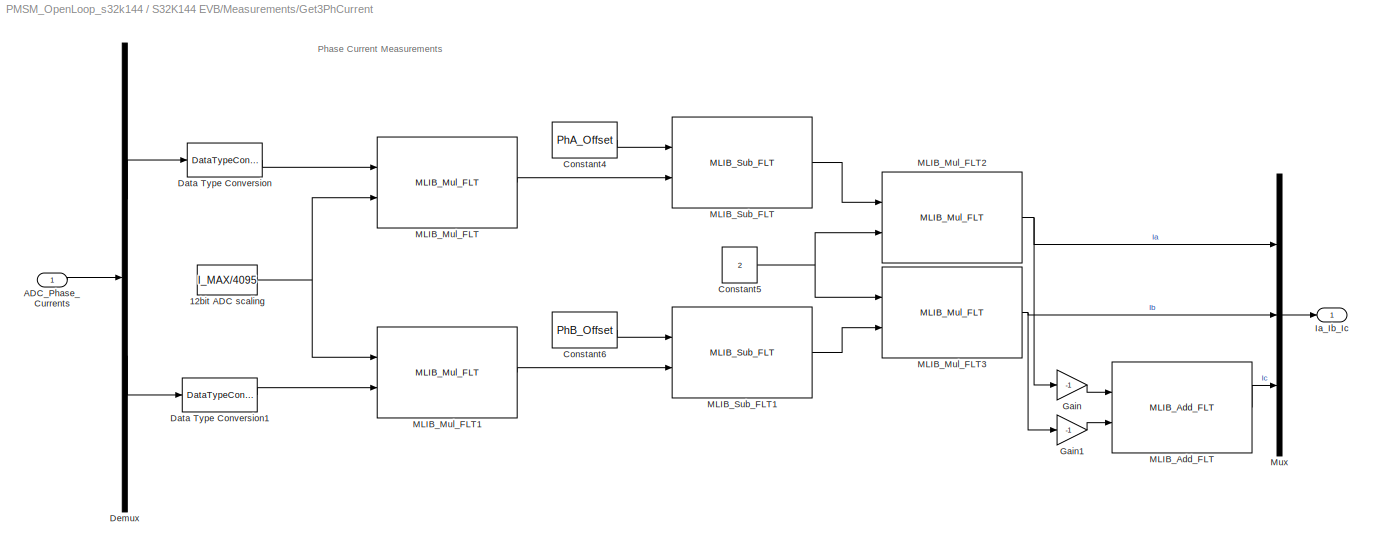
BLOCK [SubSystem] S32K144 EVB/Measurements/Get3PhCurrent
  Ports = [1, 1]
  Priority = 1
  RTWSystemCode = Reusable function
  RequestExecContextInheritance = off
  SID = 3529
  TreatAsAtomicUnit = on
BLOCK [Constant] S32K144 EVB/Measurements/Get3PhCurrent/12bit ADC scaling
  OutDataTypeStr = single
  SID = 3531
  Value = I_MAX/4095
BLOCK [Inport] S32K144 EVB/Measurements/Get3PhCurrent/ADC_Phase_Currents
  IconDisplay = Port number
  SID = 3530
BLOCK [Constant] S32K144 EVB/Measurements/Get3PhCurrent/Constant4
  OutDataTypeStr = single
  SID = 3532
  Value = PhA_Offset
BLOCK [Constant] S32K144 EVB/Measurements/Get3PhCurrent/Constant5
  OutDataTypeStr = single
  SID = 3533
  Value = 2
BLOCK [Constant] S32K144 EVB/Measurements/Get3PhCurrent/Constant6
  OutDataTypeStr = single
  SID = 3534
  Value = PhB_Offset
BLOCK [DataTypeConversion] S32K144 EVB/Measurements/Get3PhCurrent/Data Type Conversion
  OutDataTypeStr = single
  RndMeth = Floor
  SID = 3535
  SaturateOnIntegerOverflow = off
BLOCK [DataTypeConversion] S32K144 EVB/Measurements/Get3PhCurrent/Data Type Conversion1
  OutDataTypeStr = single
  RndMeth = Floor
  SID = 3536
  SaturateOnIntegerOverflow = off
BLOCK [Demux] S32K144 EVB/Measurements/Get3PhCurrent/Demux
  DisplayOption = bar
  Outputs = 2
  Ports = [1, 2]
  SID = 3537
BLOCK [Gain] S32K144 EVB/Measurements/Get3PhCurrent/Gain
  Gain = -1
  OutDataTypeStr = single
  ParamDataTypeStr = Inherit: Inherit via internal rule
  SID = 3538
  SaturateOnIntegerOverflow = off
BLOCK [Gain] S32K144 EVB/Measurements/Get3PhCurrent/Gain1
  Gain = -1
  OutDataTypeStr = single
  ParamDataTypeStr = Inherit: Inherit via internal rule
  SID = 3539
  SaturateOnIntegerOverflow = off
BLOCK [Outport] S32K144 EVB/Measurements/Get3PhCurrent/Ia_Ib_Ic
  IconDisplay = Port number
  SID = 3548
BLOCK [Reference] S32K144 EVB/Measurements/Get3PhCurrent/MLIB_Add_FLT  REF=ammclib_bam_s32k14x/MLIB/bam_flt/MLIB_Add_FLT  (lib defined in mdl_f341c9dd7fd9)
  Ports = [2, 1]
  SID = 3540
  SourceBlock = ammclib_bam_s32k14x/MLIB/bam_flt/MLIB_Add_FLT
  SourceType = MLIB_Add_FLT
BLOCK [Reference] S32K144 EVB/Measurements/Get3PhCurrent/MLIB_Mul_FLT  REF=ammclib_bam_s32k14x/MLIB/bam_flt/MLIB_Mul_FLT  (lib defined in mdl_f341c9dd7fd9)
  Ports = [2, 1]
  SID = 3541
  SourceBlock = ammclib_bam_s32k14x/MLIB/bam_flt/MLIB_Mul_FLT
  SourceType = MLIB_Mul_FLT
BLOCK [Reference] S32K144 EVB/Measurements/Get3PhCurrent/MLIB_Mul_FLT1  REF=ammclib_bam_s32k14x/MLIB/bam_flt/MLIB_Mul_FLT  (lib defined in mdl_f341c9dd7fd9)
  Ports = [2, 1]
  SID = 3542
  SourceBlock = ammclib_bam_s32k14x/MLIB/bam_flt/MLIB_Mul_FLT
  SourceType = MLIB_Mul_FLT
BLOCK [Reference] S32K144 EVB/Measurements/Get3PhCurrent/MLIB_Mul_FLT2  REF=ammclib_bam_s32k14x/MLIB/bam_flt/MLIB_Mul_FLT  (lib defined in mdl_f341c9dd7fd9)
  Ports = [2, 1]
  SID = 3543
  SourceBlock = ammclib_bam_s32k14x/MLIB/bam_flt/MLIB_Mul_FLT
  SourceType = MLIB_Mul_FLT
BLOCK [Reference] S32K144 EVB/Measurements/Get3PhCurrent/MLIB_Mul_FLT3  REF=ammclib_bam_s32k14x/MLIB/bam_flt/MLIB_Mul_FLT  (lib defined in mdl_f341c9dd7fd9)
  Ports = [2, 1]
  SID = 3544
  SourceBlock = ammclib_bam_s32k14x/MLIB/bam_flt/MLIB_Mul_FLT
  SourceType = MLIB_Mul_FLT
BLOCK [Reference] S32K144 EVB/Measurements/Get3PhCurrent/MLIB_Sub_FLT  REF=ammclib_bam_s32k14x/MLIB/bam_flt/MLIB_Sub_FLT  (lib defined in mdl_f341c9dd7fd9)
  Ports = [2, 1]
  SID = 3545
  SourceBlock = ammclib_bam_s32k14x/MLIB/bam_flt/MLIB_Sub_FLT
  SourceType = MLIB_Sub_FLT
BLOCK [Reference] S32K144 EVB/Measurements/Get3PhCurrent/MLIB_Sub_FLT1  REF=ammclib_bam_s32k14x/MLIB/bam_flt/MLIB_Sub_FLT  (lib defined in mdl_f341c9dd7fd9)
  Ports = [2, 1]
  SID = 3546
  SourceBlock = ammclib_bam_s32k14x/MLIB/bam_flt/MLIB_Sub_FLT
  SourceType = MLIB_Sub_FLT
BLOCK [Mux] S32K144 EVB/Measurements/Get3PhCurrent/Mux
  DisplayOption = bar
  Inputs = 3
  Ports = [3, 1]
  SID = 3547
BLOCK [SubSystem] S32K144 EVB/Measurements/GetIdcCurrent
  Ports = [1, 1]
  Priority = 3
  RTWFcnNameOpts = Use subsystem name
  RTWSystemCode = Reusable function
  RequestExecContextInheritance = off
  SID = 3550
  TreatAsAtomicUnit = on
BLOCK [Constant] S32K144 EVB/Measurements/GetIdcCurrent/ADC_AD6 offset \nand \nLogic power supply compensation
  OutDataTypeStr = uint32
  SID = 3552
  Value = 2090
BLOCK [Inport] S32K144 EVB/Measurements/GetIdcCurrent/ADC_Idc
  IconDisplay = Port number
  SID = 3551
BLOCK [Outport] S32K144 EVB/Measurements/GetIdcCurrent/Idc
  IconDisplay = Port number
  SID = 3556
BLOCK [Reference] S32K144 EVB/Measurements/GetIdcCurrent/MLIB_Mul_FLT  REF=ammclib_bam_s32k14x/MLIB/bam_flt/MLIB_Mul_FLT  (lib defined in mdl_f341c9dd7fd9)
  Ports = [2, 1]
  SID = 3553
  SourceBlock = ammclib_bam_s32k14x/MLIB/bam_flt/MLIB_Mul_FLT
  SourceType = MLIB_Mul_FLT
BLOCK [Sum] S32K144 EVB/Measurements/GetIdcCurrent/Sum
  InputSameDT = off
  Inputs = +-
  OutDataTypeStr = single
  Ports = [2, 1]
  SID = 3554
  SaturateOnIntegerOverflow = off
BLOCK [Constant] S32K144 EVB/Measurements/GetIdcCurrent/bits2amps
  OutDataTypeStr = single
  SID = 3555
  Value = 16.5/2048
BLOCK [SubSystem] S32K144 EVB/Measurements/GetVdcVoltage
  Ports = [1, 1]
  Priority = 2
  RTWFcnNameOpts = Use subsystem name
  RTWSystemCode = Reusable function
  RequestExecContextInheritance = off
  SID = 3558
  TreatAsAtomicUnit = on
BLOCK [Constant] S32K144 EVB/Measurements/GetVdcVoltage/ADC1_AD7_Offset
  OutDataTypeStr = uint32
  SID = 3560
  Value = 17
BLOCK [Inport] S32K144 EVB/Measurements/GetVdcVoltage/ADC_Vdc
  IconDisplay = Port number
  SID = 3559
BLOCK [Sum] S32K144 EVB/Measurements/GetVdcVoltage/Add
  AccumDataTypeStr = uint32
  Inputs = -+
  OutDataTypeStr = Inherit: Inherit via back propagation
  OutMax = 4095
  OutMin = 0
  Ports = [2, 1]
  SID = 3561
  SaturateOnIntegerOverflow = off
BLOCK [Reference] S32K144 EVB/Measurements/GetVdcVoltage/MLIB_Mul_FLT  REF=ammclib_bam_s32k14x/MLIB/bam_flt/MLIB_Mul_FLT  (lib defined in mdl_f341c9dd7fd9)
  Ports = [2, 1]
  SID = 3562
  SourceBlock = ammclib_bam_s32k14x/MLIB/bam_flt/MLIB_Mul_FLT
  SourceType = MLIB_Mul_FLT
BLOCK [Outport] S32K144 EVB/Measurements/GetVdcVoltage/Vdc
  IconDisplay = Port number
  SID = 3564
BLOCK [Constant] S32K144 EVB/Measurements/GetVdcVoltage/bits2volts
  OutDataTypeStr = single
  SID = 3563
  Value = 45/4095
BLOCK [Outport] S32K144 EVB/Measurements/Ia_Ib_Ic
  IconDisplay = Port number
  Port = 2
  SID = 3592
BLOCK [TriggerPort] S32K144 EVB/Measurements/function
  Ports = []
  SID = 3527
  StatesWhenEnabling = held
  TriggerType = function-call
  VariantControl = (inherit)
BLOCK [SubSystem] S32K144 EVB/Peripherals Initialization
  Ports = []
  Priority = 1
  RequestExecContextInheritance = off
  SID = 3680
BLOCK [Reference] S32K144 EVB/Peripherals Initialization/ADC0_Init  REF=mbd_s32k1xx_ec_toolbox/Motor Control Blocks/ADC Blocks/ADC_Config
  Ports = []
  Priority = 3
  SID = 3681
  SourceBlock = mbd_s32k1xx_ec_toolbox/Motor Control Blocks/ADC Blocks/ADC_Config
  SourceType = adc_s32k_config_block
  acfe = off
  acfgt = off
  acren = off
  adco = off
  adiclk = alternate clock 1
  adiv = input clock
  adtrg = hardware
  avge = off
  avgs = 4 samples
  cv1 = 0
  cv2 = 0
  instance = 0
  mode = 12-bit conversion
  pretrgsel = PDB pre-trigger
  refsel = Vrefh and Vrefl
  show_adv_opts = on
  smplts = 2
  supply_monitoring = off
  swpretrg = Disabled
  trgsel = PDB output
BLOCK [Reference] S32K144 EVB/Peripherals Initialization/ADC1_IRQ  REF=mbd_s32k1xx_ec_toolbox/Motor Control Blocks/ADC Blocks/ADC_Start
  Ports = []
  Priority = 5
  SID = 3682
  SourceBlock = mbd_s32k1xx_ec_toolbox/Motor Control Blocks/ADC Blocks/ADC_Start
  SourceType = adc_s32k_start_block
  adc_chan = PTB16: [ADC1_SE15 | ADC Single Ended Input]
  adc_r = C
  aien = on
  instance = 1
  mcuTargetUpdate = on
BLOCK [Reference] S32K144 EVB/Peripherals Initialization/ADC1_Init  REF=mbd_s32k1xx_ec_toolbox/Motor Control Blocks/ADC Blocks/ADC_Config
  Ports = []
  Priority = 4
  SID = 3683
  SourceBlock = mbd_s32k1xx_ec_toolbox/Motor Control Blocks/ADC Blocks/ADC_Config
  SourceType = adc_s32k_config_block
  acfe = off
  acfgt = off
  acren = off
  adco = off
  adiclk = alternate clock 1
  adiv = input clock
  adtrg = hardware
  avge = off
  avgs = 4 samples
  cv1 = 0
  cv2 = 0
  instance = 1
  mode = 12-bit conversion
  pretrgsel = PDB pre-trigger
  refsel = Vrefh and Vrefl
  show_adv_opts = on
  smplts = 2
  supply_monitoring = off
  swpretrg = Disabled
  trgsel = PDB output
BLOCK [Reference] S32K144 EVB/Peripherals Initialization/ADC_Interleave  REF=mbd_s32k1xx_ec_toolbox/Motor Control Blocks/ADC Blocks/ADC_Interleave
  Ports = []
  SID = 3852
  SourceBlock = mbd_s32k1xx_ec_toolbox/Motor Control Blocks/ADC Blocks/ADC_Interleave
  SourceType = adc_s32k_interleave_block
  adcInterleaveInit = on
  adcInterleavePins = PTB1 to ADC0_SE5 and ADC1_SE15
BLOCK [Reference] S32K144 EVB/Peripherals Initialization/FreeMaster_Config  REF=mbd_s32k1xx_ec_toolbox/Utility Blocks/FreeMaster_Config
  Ports = []
  SID = 3684
  SourceBlock = mbd_s32k1xx_ec_toolbox/Utility Blocks/FreeMaster_Config
  SourceType = fm_s32k_config
  baudrate = 115200
  comm_buffer_size = 255
  comm_buffer_size_auto = on
  comm_rqueue_size = 32
  comm_rqueue_size_default = on
  interface = LPUART1
  isr_prio = 10
  max_rec_vars = 8
  max_scope_vars = 8
  mode = Short Interrupt
  rec_buff_size = 8192
  rec_timebase = 100
  rec_timebase_unit = microseconds
  rxd = PTC6: [LPUART1_RX | Receive]
  show_adv_opts = on
  txd = PTC7: [LPUART1_TX | Transmit]
  use_recorder = on
  use_scope = on
BLOCK [Reference] S32K144 EVB/Peripherals Initialization/GD3000_Config  REF=mbd_msd_ec_toolbox/TPP/TPP_Config
  Ports = []
  Priority = 1
  SID = 3926
  SourceBlock = mbd_msd_ec_toolbox/TPP/TPP_Config
  SourceType = tpp_s32k_config
  desatEvent = off
  desatMode = on
  framingEvent = on
  fullonMode = off
  initTppNow = on
  lockMode = off
  mcuTppIntEn = off
  overcurrentEvent = on
  overtempEvent = on
  phaseEvent = off
  prioInt = 15
  resetEvent = on
  tppCsPin = PTB5: [PTB5 | Port B I/O]
  tppDeadtime = 500
  tppEn1Pin = PTA2: [PTA2 | Port A I/O]
  tppEn2Pin = PTA2: [PTA2 | Port A I/O]
  tppFirstChHS = on
  tppInstance = 0
  tppIntPin = PTE10: [PTE10 | Port E I/O]
  tppPair0_1 = on
  tppPair2_3 = on
  tppPair4_5 = on
  tppPair6_7 = off
  tppPwmModule = Please add FTM block to workspace
  tppRstPin = PTA3: [PTA3 | Port A I/O]
  tppSpiInst = Please add SPI block to workspace
  vlsEvent = on
  writeErrEvent = on
BLOCK [Reference] S32K144 EVB/Peripherals Initialization/LPSPI_Config\n  REF=mbd_s32k1xx_ec_toolbox/Communication Blocks/SPI Blocks/LPSPI_Config\n
  BaudRate = 2000000
  BitOrder = MSB first
  CPHA = 1
  CPOL = 0
  ContinuousTransfer = off
  InstanceNumber = 0
  PCSPol = ActiveLow
  Ports = []
  Role = Master
  SID = 3685
  ShowAdvanced = on
  SourceBlock = mbd_s32k1xx_ec_toolbox/Communication Blocks/SPI Blocks/LPSPI_Config\n
  SourceType = lpspi_s32k_config
  TransferSize = 8
  WhichPCS = 0
  pcs0 = None
  pcs1 = PTB5: [LPSPI0_PCS1 | Peripheral Chip Select 1]
  pcs2 = None
  pcs3 = None
  sck = PTB2: [LPSPI0_SCK | LPSPI Serial Clock I/O]
  sin = PTB3: [LPSPI0_SIN | LPSPI Serial Data Input]
  sout = PTB4: [LPSPI0_SOUT | LPSPI Serial Data Output]
BLOCK [Reference] S32K144 EVB/Peripherals Initialization/PDB0_Init  REF=mbd_s32k1xx_ec_toolbox/Motor Control Blocks/PDB Blocks/PDB_Config
  Ports = []
  Priority = 1
  SID = 3686
  SourceBlock = mbd_s32k1xx_ec_toolbox/Motor Control Blocks/PDB Blocks/PDB_Config
  SourceType = pdb_s32k_config_block
  enable_pdb_init = off
  pdbModule = 0
  regCh0C1Bb0 = off
  regCh0C1Bb1 = off
  regCh0C1Bb2 = off
  regCh0C1Bb3 = off
  regCh0C1Bb4 = off
  regCh0C1Bb5 = off
  regCh0C1Bb6 = off
  regCh0C1Bb7 = off
  regCh0C1En0 = on
  regCh0C1En1 = off
  regCh0C1En2 = off
  regCh0C1En3 = off
  regCh0C1En4 = off
  regCh0C1En5 = off
  regCh0C1En6 = off
  regCh0C1En7 = off
  regCh0C1Tos0 = Pre-trigger is in delay mode
  regCh0C1Tos1 = Pre-trigger is in delay mode
  regCh0C1Tos2 = Pre-trigger is in delay mode
  regCh0C1Tos3 = Pre-trigger is in delay mode
  regCh0C1Tos4 = Pre-trigger is in delay mode
  regCh0C1Tos5 = Pre-trigger is in delay mode
  regCh0C1Tos6 = Pre-trigger is in delay mode
  regCh0C1Tos7 = Pre-trigger is in delay mode
  regCh0DlyDly0 = 2000
  regCh0DlyDly1 = 0
  regCh0DlyDly2 = 0
  regCh0DlyDly3 = 0
  regCh0DlyDly4 = 0
  regCh0DlyDly5 = 0
  regCh0DlyDly6 = 0
  regCh0DlyDly7 = 0
  regCh1C1Bb0 = off
  regCh1C1Bb1 = off
  regCh1C1Bb2 = off
  regCh1C1Bb3 = off
  regCh1C1Bb4 = off
  regCh1C1Bb5 = off
  regCh1C1Bb6 = off
  regCh1C1Bb7 = off
  regCh1C1En0 = off
  regCh1C1En1 = off
  regCh1C1En2 = off
  regCh1C1En3 = off
  regCh1C1En4 = off
  regCh1C1En5 = off
  regCh1C1En6 = off
  regCh1C1En7 = off
  regCh1C1Tos0 = Pre-trigger is in delay mode
  regCh1C1Tos1 = Pre-trigger is in delay mode
  regCh1C1Tos2 = Pre-trigger is in delay mode
  regCh1C1Tos3 = Pre-trigger is in delay mode
  regCh1C1Tos4 = Pre-trigger is in delay mode
  regCh1C1Tos5 = Pre-trigger is in delay mode
  regCh1C1Tos6 = Pre-trigger is in delay mode
  regCh1C1Tos7 = Pre-trigger is in delay mode
  regCh1DlyDly0 = 0
  regCh1DlyDly1 = 0
  regCh1DlyDly2 = 0
  regCh1DlyDly3 = 0
  regCh1DlyDly4 = 0
  regCh1DlyDly5 = 0
  regCh1DlyDly6 = 0
  regCh1DlyDly7 = 0
  regModModulus = 5000
  regPo0DlyDly1 = 0
  regPo0DlyDly2 = 0
  regPoenPoen0 = off
  regScCont = One-Shot
  regScMult = 1
  regScPrescaler = 1
  regScTrgsel = External (TRGMUX_PDB_TRIG)
  show_adv_opts = on
  trgMuxSel = FTM3 Initialize Trigger
  trgMuxSelPin = PTB5: [TRGMUX_IN0 | Trigger Mux Input]
BLOCK [Reference] S32K144 EVB/Peripherals Initialization/PDB1_Init  REF=mbd_s32k1xx_ec_toolbox/Motor Control Blocks/PDB Blocks/PDB_Config
  Ports = []
  Priority = 2
  SID = 3687
  SourceBlock = mbd_s32k1xx_ec_toolbox/Motor Control Blocks/PDB Blocks/PDB_Config
  SourceType = pdb_s32k_config_block
  enable_pdb_init = off
  pdbModule = 1
  regCh0C1Bb0 = off
  regCh0C1Bb1 = off
  regCh0C1Bb2 = off
  regCh0C1Bb3 = off
  regCh0C1Bb4 = off
  regCh0C1Bb5 = off
  regCh0C1Bb6 = off
  regCh0C1Bb7 = off
  regCh0C1En0 = on
  regCh0C1En1 = on
  regCh0C1En2 = on
  regCh0C1En3 = off
  regCh0C1En4 = off
  regCh0C1En5 = off
  regCh0C1En6 = off
  regCh0C1En7 = off
  regCh0C1Tos0 = Pre-trigger is in delay mode
  regCh0C1Tos1 = Pre-trigger is in delay mode
  regCh0C1Tos2 = Pre-trigger is in delay mode
  regCh0C1Tos3 = Pre-trigger is in delay mode
  regCh0C1Tos4 = Pre-trigger is in delay mode
  regCh0C1Tos5 = Pre-trigger is in delay mode
  regCh0C1Tos6 = Pre-trigger is in delay mode
  regCh0C1Tos7 = Pre-trigger is in delay mode
  regCh0DlyDly0 = 0
  regCh0DlyDly1 = 1000
  regCh0DlyDly2 = 2000
  regCh0DlyDly3 = 0
  regCh0DlyDly4 = 0
  regCh0DlyDly5 = 0
  regCh0DlyDly6 = 0
  regCh0DlyDly7 = 0
  regCh1C1Bb0 = off
  regCh1C1Bb1 = off
  regCh1C1Bb2 = off
  regCh1C1Bb3 = off
  regCh1C1Bb4 = off
  regCh1C1Bb5 = off
  regCh1C1Bb6 = off
  regCh1C1Bb7 = off
  regCh1C1En0 = off
  regCh1C1En1 = off
  regCh1C1En2 = off
  regCh1C1En3 = off
  regCh1C1En4 = off
  regCh1C1En5 = off
  regCh1C1En6 = off
  regCh1C1En7 = off
  regCh1C1Tos0 = Pre-trigger is in delay mode
  regCh1C1Tos1 = Pre-trigger is in delay mode
  regCh1C1Tos2 = Pre-trigger is in delay mode
  regCh1C1Tos3 = Pre-trigger is in delay mode
  regCh1C1Tos4 = Pre-trigger is in delay mode
  regCh1C1Tos5 = Pre-trigger is in delay mode
  regCh1C1Tos6 = Pre-trigger is in delay mode
  regCh1C1Tos7 = Pre-trigger is in delay mode
  regCh1DlyDly0 = 0
  regCh1DlyDly1 = 0
  regCh1DlyDly2 = 0
  regCh1DlyDly3 = 0
  regCh1DlyDly4 = 0
  regCh1DlyDly5 = 0
  regCh1DlyDly6 = 0
  regCh1DlyDly7 = 0
  regModModulus = 5000
  regPo0DlyDly1 = 0
  regPo0DlyDly2 = 0
  regPoenPoen0 = off
  regScCont = One-Shot
  regScMult = 1
  regScPrescaler = 1
  regScTrgsel = External (TRGMUX_PDB_TRIG)
  show_adv_opts = on
  trgMuxSel = FTM3 Initialize Trigger
  trgMuxSelPin = PTB5: [TRGMUX_IN0 | Trigger Mux Input]
BLOCK [SubSystem] S32K144 EVB/SlowLoopControl
  Ports = [0, 2, 0, 1]
  PropExecContextOutsideSubsystem = on
  RTWFcnNameOpts = Use subsystem name
  RTWSystemCode = Nonreusable function
  RequestExecContextInheritance = off
  SID = 3593
BLOCK [Constant] S32K144 EVB/SlowLoopControl/Constant1
  OutDataTypeStr = single
  SID = 3595
  SampleTime = -1
  Value = 0
BLOCK [DataStoreWrite] S32K144 EVB/SlowLoopControl/Data Store\nWrite4
  DataStoreName = SPEED_REF
  Ports = [1]
  SID = 3596
BLOCK [Outport] S32K144 EVB/SlowLoopControl/Flux
  IconDisplay = Port number
  SID = 3602
BLOCK [Reference] S32K144 EVB/SlowLoopControl/MLIB_Abs_FLT  REF=ammclib_bam_s32k14x/MLIB/bam_flt/MLIB_Abs_FLT  (lib defined in mdl_f341c9dd7fd9)
  Ports = [1, 1]
  SID = 3864
  SourceBlock = ammclib_bam_s32k14x/MLIB/bam_flt/MLIB_Abs_FLT
  SourceType = MLIB_Abs_FLT
BLOCK [Reference] S32K144 EVB/SlowLoopControl/Ramp_RPM2RAD//S  REF=ammclib_bam_s32k14x/GFLIB/bam_flt/GFLIB_Ramp_FLT  (lib defined in mdl_f341c9dd7fd9)
  Ports = [1, 1]
  SID = 3597
  SourceBlock = ammclib_bam_s32k14x/GFLIB/bam_flt/GFLIB_Ramp_FLT
  SourceType = GFLIB_Ramp
  fltRampDown = 0.1
  fltRampUp = 0.1
BLOCK [Saturate] S32K144 EVB/SlowLoopControl/Saturation
  InputPortMap = u0
  LowerLimit = 0
  Ports = [1, 1]
  SID = 3598
  UpperLimit = 0.95
BLOCK [TriggerPort] S32K144 EVB/SlowLoopControl/SlowLoop
  Ports = []
  SID = 3594
  StatesWhenEnabling = held
  TriggerType = function-call
  VariantControl = (inherit)
BLOCK [Reference] S32K144 EVB/SlowLoopControl/SlowLoopProfiler  REF=mbd_s32k1xx_ec_toolbox/Utility Blocks/Profiler_Function
  Ports = []
  SID = 3599
  SourceBlock = mbd_s32k1xx_ec_toolbox/Utility Blocks/Profiler_Function
  SourceType = profiler_s32k_func
  profile_indx = 1
  showOut = off
BLOCK [Outport] S32K144 EVB/SlowLoopControl/Torque
  IconDisplay = Port number
  Port = 2
  SID = 3603
BLOCK [Lookup_n-D] S32K144 EVB/SlowLoopControl/V//f profile
  BreakpointsForDimension1 = [0:20.94:209.4]
  InternalRulePriority = Speed
  NumberOfTableDimensions = 1
  Ports = [1, 1]
  RndMeth = Simplest
  SID = 3600
  Table = [0.15:0.08:0.95]
BLOCK [DataStoreRead] S32K144 EVB/SlowLoopControl/el_angle_inc
  DataStoreName = SPEED_CMD
  Ports = [0, 1]
  SID = 3601
BLOCK [DataStoreMemory] S32K144 EVB/Speed Command
  DataStoreName = SPEED_CMD
  InitialValue = 52.35
  OutDataTypeStr = single
  OutMax = 209.4
  OutMin = 0
  ReadBeforeWriteMsg = warning
  SID = 3672
  ShowAdditionalParam = off
  WriteAfterReadMsg = warning
  WriteAfterWriteMsg = warning
BLOCK [DataStoreMemory] S32K144 EVB/Speed Command1
  DataStoreName = READY
  OutDataTypeStr = boolean
  OutMax = 1
  OutMin = 0
  ReadBeforeWriteMsg = warning
  SID = 3673
  ShowAdditionalParam = off
  WriteAfterReadMsg = warning
  WriteAfterWriteMsg = warning
BLOCK [Terminator] S32K144 EVB/Terminator
  SID = 3605
BLOCK [DataStoreMemory] S32K144 EVB/UQ_REF6
  DataStoreName = SPEED_REF
  OutDataTypeStr = single
  ReadBeforeWriteMsg = warning
  SID = 3674
  ShowAdditionalParam = off
  WriteAfterReadMsg = warning
  WriteAfterWriteMsg = warning
ANNOTATION (root): \n \n \n Open Loop PMSM Motor Control \n with MTRDEVKSBNK144 DevKit \n
ANNOTATION (root): \n \n DISCLAIMER: This Simulink model was tested with the MTRDEVKSDBNK144 kit. Read very carefully the HW&SW Setup below. \n This example is distributed under the NXP Tools License Agreement Terms & Conditions that can be found in LA_OPT_NXP_Software_License.htm
ANNOTATION (root): \n \n
ANNOTATION (root): \n \n Linix Motor 45ZWN24-40-B
ANNOTATION S32K144 EVB: Fault interrupt
ANNOTATION S32K144 EVB: Rotate PMSM Motor in Open Loop
ANNOTATION S32K144 EVB/FastLoopControl: \n \n \n FAST CONTROL LOOP \n \n Computes the PWM commands for 3-phase inverter MOSFETs starting from DQ Reference Frame Voltages: UD_REF and UQ_REF \n At each 0.1ms the electric angle is incremented based on the SPEED_REF profile \n The implementation is done with Simulink blocks supported by AMMCLIB
ANNOTATION S32K144 EVB/Measurements/Get3PhCurrent: \n \n \n Phase Current Measurements \n \n This function performs measurement of three phase currents from two shunt resistors. Because a non-zero length PWM pulse width is required for successful current sample, this approach can not be utilized up to full PWM dutycycle \n
ANNOTATION S32K144 EVB/Measurements/GetIdcCurrent: \n \n \n DC-Link Current Measurement \n \n This function performs measurement of DC-Bus Current \n
ANNOTATION S32K144 EVB/Measurements/GetVdcVoltage: \n \n \n DC-Link Voltage Measurement \n \n This function performs measurement of DC-Bus Voltage \n
ANNOTATION S32K144 EVB/Measurements/GetVdcVoltage: `
ANNOTATION S32K144 EVB/SlowLoopControl: \n \n \n SLOW CONTROL LOOP \n \n Create the reference signals for D&Q-axis voltages used for Space Vector Modulation starting from user defined SPEED_CMD. \n The SPEED_REF profile slope can be changed from the GFLIB_RAMP_FLT block parameters \n The V/f LUT controls the actual voltage aplied in Q axis. Based on motor characterisics and available Vdc the LUT needs to be updated \n D axis voltage is ...<+8ch>
LINE S32K144 EVB/ADC Sensing/ADC1_IRQHandler/ADC_AD4_IA:1 -> S32K144 EVB/ADC Sensing/ADC1_IRQHandler/Mux:1
LINE S32K144 EVB/ADC Sensing/ADC1_IRQHandler/ADC_AD6_IDC:1 -> S32K144 EVB/ADC Sensing/ADC1_IRQHandler/ADC_Idc:1
LINE S32K144 EVB/ADC Sensing/ADC1_IRQHandler/ADC_AD7_VDC:1 -> S32K144 EVB/ADC Sensing/ADC1_IRQHandler/ADC_Vdc:1
LINE S32K144 EVB/ADC Sensing/ADC1_IRQHandler/ADC_IB:1 -> S32K144 EVB/ADC Sensing/ADC1_IRQHandler/Mux:2
LINE S32K144 EVB/ADC Sensing/ADC1_IRQHandler/Function-Call\nGenerator:1 -> S32K144 EVB/ADC Sensing/ADC1_IRQHandler/FcnCall:1
LINE S32K144 EVB/ADC Sensing/ADC1_IRQHandler/Mux:1 -> S32K144 EVB/ADC Sensing/ADC1_IRQHandler/ADC_Phase_Currents:1
LINE S32K144 EVB/ADC Sensing/ADC1_IRQHandler:1 -> S32K144 EVB/ADC Sensing/FcnCall:1
LINE S32K144 EVB/ADC Sensing/ADC1_IRQHandler:2 -> S32K144 EVB/ADC Sensing/ADC_IaIb:1
LINE S32K144 EVB/ADC Sensing/ADC1_IRQHandler:3 -> S32K144 EVB/ADC Sensing/ADC_Vdc:1
LINE S32K144 EVB/ADC Sensing/ADC1_IRQHandler:4 -> S32K144 EVB/ADC Sensing/ADC_Idc:1
LINE S32K144 EVB/ADC Sensing/ADC1_ISR:1 -> S32K144 EVB/ADC Sensing/ADC1_IRQHandler:trigger
LINE S32K144 EVB/ADC Sensing/ADC1_ISR:2 -> S32K144 EVB/ADC Sensing/ADC1_IRQHandler:1
LINE S32K144 EVB/ADC Sensing/ADC1_ISR:3 -> S32K144 EVB/ADC Sensing/Terminator6:1
LINE S32K144 EVB/ADC Sensing/PDB1_ISR:1 -> S32K144 EVB/ADC Sensing/PDB1_IRQHandler:trigger
LINE S32K144 EVB/ADC Sensing/PDB1_ISR:2 -> S32K144 EVB/ADC Sensing/Terminator1:1
LINE S32K144 EVB/ADC Sensing/PDB1_ISR:3 -> S32K144 EVB/ADC Sensing/Terminator2:1
LINE S32K144 EVB/ADC Sensing/PDB1_ISR:4 -> S32K144 EVB/ADC Sensing/Terminator:1
LINE S32K144 EVB/ADC Sensing:1 -> S32K144 EVB/Measurements:trigger
LINE S32K144 EVB/ADC Sensing:2 -> S32K144 EVB/Measurements:1
LINE S32K144 EVB/ADC Sensing:3 -> S32K144 EVB/Measurements:2
LINE S32K144 EVB/ADC Sensing:4 -> S32K144 EVB/Measurements:3
LINE S32K144 EVB/FastLoopControl/ComputeElectricAngle/DIV:1 -> S32K144 EVB/FastLoopControl/ComputeElectricAngle/MLIB_ConvertPU_F32FLT:1
LINE S32K144 EVB/FastLoopControl/ComputeElectricAngle/GFLIB_IntegratorTR_F32:1 -> S32K144 EVB/FastLoopControl/ComputeElectricAngle/MLIB_ConvertPU_FLTF32:1
LINE S32K144 EVB/FastLoopControl/ComputeElectricAngle/MLIB_ConvertPU_F32FLT:1 -> S32K144 EVB/FastLoopControl/ComputeElectricAngle/GFLIB_IntegratorTR_F32:1
LINE S32K144 EVB/FastLoopControl/ComputeElectricAngle/MLIB_ConvertPU_FLTF32:1 -> S32K144 EVB/FastLoopControl/ComputeElectricAngle/MUL:1
LINE S32K144 EVB/FastLoopControl/ComputeElectricAngle/MUL:1 -> S32K144 EVB/FastLoopControl/ComputeElectricAngle/theta:1
LINE S32K144 EVB/FastLoopControl/ComputeElectricAngle/SpeedMax_rad//s:1 -> S32K144 EVB/FastLoopControl/ComputeElectricAngle/DIV:2
LINE S32K144 EVB/FastLoopControl/ComputeElectricAngle/Speed_Reference [rad//s]:1 -> S32K144 EVB/FastLoopControl/ComputeElectricAngle/DIV:1
LINE S32K144 EVB/FastLoopControl/ComputeElectricAngle/pi:1 -> S32K144 EVB/FastLoopControl/ComputeElectricAngle/MUL:2
LINE S32K144 EVB/FastLoopControl/ComputeElectricAngle:1 -> S32K144 EVB/FastLoopControl/GFLIB_SinCos_FLT:1
LINE S32K144 EVB/FastLoopControl/GFLIB_SinCos_FLT:1 -> S32K144 EVB/FastLoopControl/GMCLIB_ParkInv_FLT:3
LINE S32K144 EVB/FastLoopControl/GFLIB_SinCos_FLT:2 -> S32K144 EVB/FastLoopControl/GMCLIB_ParkInv_FLT:4
LINE S32K144 EVB/FastLoopControl/GMCLIB_ParkInv_FLT:1 -> S32K144 EVB/FastLoopControl/GMCLIB_SvmStd_FLT:1
LINE S32K144 EVB/FastLoopControl/GMCLIB_ParkInv_FLT:2 -> S32K144 EVB/FastLoopControl/GMCLIB_SvmStd_FLT:2
LINE S32K144 EVB/FastLoopControl/GMCLIB_SvmStd_FLT:1 -> S32K144 EVB/FastLoopControl/PWMCommands:1
LINE S32K144 EVB/FastLoopControl/GMCLIB_SvmStd_FLT:2 -> S32K144 EVB/FastLoopControl/PWMCommands:2
LINE S32K144 EVB/FastLoopControl/GMCLIB_SvmStd_FLT:3 -> S32K144 EVB/FastLoopControl/PWMCommands:3
LINE S32K144 EVB/FastLoopControl/GMCLIB_SvmStd_FLT:4 -> S32K144 EVB/FastLoopControl/Terminator:1
LINE S32K144 EVB/FastLoopControl/PWMCommands/Control_Logic1/Enable PDB and start FTM/ Demux :1 -> S32K144 EVB/FastLoopControl/PWMCommands/Control_Logic1/Enable PDB and start FTM/enablePDB():1
LINE S32K144 EVB/FastLoopControl/PWMCommands/Control_Logic1/Enable PDB and start FTM/ Demux :2 -> S32K144 EVB/FastLoopControl/PWMCommands/Control_Logic1/Enable PDB and start FTM/Normal_Op():1
LINE S32K144 EVB/FastLoopControl/PWMCommands/Control_Logic1/Enable PDB and start FTM/ Ground :1 -> S32K144 EVB/FastLoopControl/PWMCommands/Control_Logic1/Enable PDB and start FTM/ SFunction :1
LINE S32K144 EVB/FastLoopControl/PWMCommands/Control_Logic1/Enable PDB and start FTM/ SFunction :1 -> S32K144 EVB/FastLoopControl/PWMCommands/Control_Logic1/Enable PDB and start FTM/ Demux :1
LINE S32K144 EVB/FastLoopControl/PWMCommands/Control_Logic1/Enable PDB and start FTM:1 -> S32K144 EVB/FastLoopControl/PWMCommands/Control_Logic1/enable_FTM_PDB_ADC_triggering:trigger
LINE S32K144 EVB/FastLoopControl/PWMCommands/Control_Logic1/Enable PDB and start FTM:2 -> S32K144 EVB/FastLoopControl/PWMCommands/Control_Logic1/Normal Operation:trigger
LINE S32K144 EVB/FastLoopControl/PWMCommands/Control_Logic1/Normal Operation/PhaseA_HS:1 -> S32K144 EVB/FastLoopControl/PWMCommands/Control_Logic1/Normal Operation/PhaseA_HS_out:1
LINE S32K144 EVB/FastLoopControl/PWMCommands/Control_Logic1/Normal Operation/PhaseA_LS:1 -> S32K144 EVB/FastLoopControl/PWMCommands/Control_Logic1/Normal Operation/PhaseA_LS_out:1
LINE S32K144 EVB/FastLoopControl/PWMCommands/Control_Logic1/Normal Operation/PhaseB_HS:1 -> S32K144 EVB/FastLoopControl/PWMCommands/Control_Logic1/Normal Operation/PhaseB_HS_out:1
LINE S32K144 EVB/FastLoopControl/PWMCommands/Control_Logic1/Normal Operation/PhaseB_LS:1 -> S32K144 EVB/FastLoopControl/PWMCommands/Control_Logic1/Normal Operation/PhaseB_LS_out:1
LINE S32K144 EVB/FastLoopControl/PWMCommands/Control_Logic1/Normal Operation/PhaseC_HS:1 -> S32K144 EVB/FastLoopControl/PWMCommands/Control_Logic1/Normal Operation/PhaseC_HS_out:1
LINE S32K144 EVB/FastLoopControl/PWMCommands/Control_Logic1/Normal Operation/PhaseC_LS:1 -> S32K144 EVB/FastLoopControl/PWMCommands/Control_Logic1/Normal Operation/PhaseC_LS_out:1
LINE S32K144 EVB/FastLoopControl/PWMCommands/Control_Logic1/Normal Operation:1 -> S32K144 EVB/FastLoopControl/PWMCommands/Control_Logic1/PhaseA_HS_out:1
LINE S32K144 EVB/FastLoopControl/PWMCommands/Control_Logic1/Normal Operation:2 -> S32K144 EVB/FastLoopControl/PWMCommands/Control_Logic1/PhaseA_LS_out:1
LINE S32K144 EVB/FastLoopControl/PWMCommands/Control_Logic1/Normal Operation:3 -> S32K144 EVB/FastLoopControl/PWMCommands/Control_Logic1/PhaseB_HS_out:1
LINE S32K144 EVB/FastLoopControl/PWMCommands/Control_Logic1/Normal Operation:4 -> S32K144 EVB/FastLoopControl/PWMCommands/Control_Logic1/PhaseB_LS_out:1
LINE S32K144 EVB/FastLoopControl/PWMCommands/Control_Logic1/Normal Operation:5 -> S32K144 EVB/FastLoopControl/PWMCommands/Control_Logic1/PhaseC_HS_out:1
LINE S32K144 EVB/FastLoopControl/PWMCommands/Control_Logic1/Normal Operation:6 -> S32K144 EVB/FastLoopControl/PWMCommands/Control_Logic1/PhaseC_LS_out:1
LINE S32K144 EVB/FastLoopControl/PWMCommands/Control_Logic1/PhaseA_HS:1 -> S32K144 EVB/FastLoopControl/PWMCommands/Control_Logic1/Normal Operation:1
LINE S32K144 EVB/FastLoopControl/PWMCommands/Control_Logic1/PhaseA_LS:1 -> S32K144 EVB/FastLoopControl/PWMCommands/Control_Logic1/Normal Operation:2
LINE S32K144 EVB/FastLoopControl/PWMCommands/Control_Logic1/PhaseB_HS:1 -> S32K144 EVB/FastLoopControl/PWMCommands/Control_Logic1/Normal Operation:3
LINE S32K144 EVB/FastLoopControl/PWMCommands/Control_Logic1/PhaseB_LS:1 -> S32K144 EVB/FastLoopControl/PWMCommands/Control_Logic1/Normal Operation:4
LINE S32K144 EVB/FastLoopControl/PWMCommands/Control_Logic1/PhaseC_HS:1 -> S32K144 EVB/FastLoopControl/PWMCommands/Control_Logic1/Normal Operation:5
LINE S32K144 EVB/FastLoopControl/PWMCommands/Control_Logic1/PhaseC_LS:1 -> S32K144 EVB/FastLoopControl/PWMCommands/Control_Logic1/Normal Operation:6
LINE S32K144 EVB/FastLoopControl/PWMCommands/Control_Logic1/enable_FTM_PDB_ADC_triggering/ON:1 -> S32K144 EVB/FastLoopControl/PWMCommands/Control_Logic1/enable_FTM_PDB_ADC_triggering/SpeedCmd :1
LINE S32K144 EVB/FastLoopControl/PWMCommands/Control_Logic1:1 -> S32K144 EVB/FastLoopControl/PWMCommands/FTM_PWM_Config:1
LINE S32K144 EVB/FastLoopControl/PWMCommands/Control_Logic1:2 -> S32K144 EVB/FastLoopControl/PWMCommands/FTM_PWM_Config:2
LINE S32K144 EVB/FastLoopControl/PWMCommands/Control_Logic1:3 -> S32K144 EVB/FastLoopControl/PWMCommands/FTM_PWM_Config:3
LINE S32K144 EVB/FastLoopControl/PWMCommands/Control_Logic1:4 -> S32K144 EVB/FastLoopControl/PWMCommands/FTM_PWM_Config:4
LINE S32K144 EVB/FastLoopControl/PWMCommands/Control_Logic1:5 -> S32K144 EVB/FastLoopControl/PWMCommands/FTM_PWM_Config:5
LINE S32K144 EVB/FastLoopControl/PWMCommands/Control_Logic1:6 -> S32K144 EVB/FastLoopControl/PWMCommands/FTM_PWM_Config:6
NET S32K144 EVB/FastLoopControl/PWMCommands/PWM_A:1 -> S32K144 EVB/FastLoopControl/PWMCommands/Control_Logic1:1, S32K144 EVB/FastLoopControl/PWMCommands/Control_Logic1:2
NET S32K144 EVB/FastLoopControl/PWMCommands/PWM_B:1 -> S32K144 EVB/FastLoopControl/PWMCommands/Control_Logic1:3, S32K144 EVB/FastLoopControl/PWMCommands/Control_Logic1:4
NET S32K144 EVB/FastLoopControl/PWMCommands/PWM_C:1 -> S32K144 EVB/FastLoopControl/PWMCommands/Control_Logic1:5, S32K144 EVB/FastLoopControl/PWMCommands/Control_Logic1:6
LINE S32K144 EVB/FastLoopControl/UD_REF:1 -> S32K144 EVB/FastLoopControl/GMCLIB_ParkInv_FLT:1
LINE S32K144 EVB/FastLoopControl/UQ_REF:1 -> S32K144 EVB/FastLoopControl/GMCLIB_ParkInv_FLT:2
LINE S32K144 EVB/FastLoopControl/el_angle_inc:1 -> S32K144 EVB/FastLoopControl/ComputeElectricAngle:1
LINE S32K144 EVB/GD3000_interrupt/NOK:1 -> S32K144 EVB/GD3000_interrupt/FAULT_write:1
LINE S32K144 EVB/GD300_ISR_Callback\n:1 -> S32K144 EVB/GD3000_interrupt:trigger
LINE S32K144 EVB/IO Controls/Add:1 -> S32K144 EVB/IO Controls/Zero-Order\nHold:1
LINE S32K144 EVB/IO Controls/If1:1 -> S32K144 EVB/IO Controls/START:ifaction
LINE S32K144 EVB/IO Controls/If:1 -> S32K144 EVB/IO Controls/WaitForStart:ifaction
LINE S32K144 EVB/IO Controls/If:2 -> S32K144 EVB/IO Controls/NormalOp:ifaction
LINE S32K144 EVB/IO Controls/NormalOp/FAULT/OFF:1 -> S32K144 EVB/IO Controls/NormalOp/FAULT/LED_BLUE:1
LINE S32K144 EVB/IO Controls/NormalOp/FAULT/ON:1 -> S32K144 EVB/IO Controls/NormalOp/FAULT/LED_RED:1
LINE S32K144 EVB/IO Controls/NormalOp/If:1 -> S32K144 EVB/IO Controls/NormalOp/RUNNING_OK:ifaction
LINE S32K144 EVB/IO Controls/NormalOp/If:2 -> S32K144 EVB/IO Controls/NormalOp/FAULT:ifaction
LINE S32K144 EVB/IO Controls/NormalOp/OFF :1 -> S32K144 EVB/IO Controls/NormalOp/LED_GREEN:1
LINE S32K144 EVB/IO Controls/NormalOp/RUNNING_OK/OFF:1 -> S32K144 EVB/IO Controls/NormalOp/RUNNING_OK/LED_RED:1
LINE S32K144 EVB/IO Controls/NormalOp/RUNNING_OK/ON:1 -> S32K144 EVB/IO Controls/NormalOp/RUNNING_OK/LED_BLUE:1
LINE S32K144 EVB/IO Controls/NormalOp/SpeedCmd2:1 -> S32K144 EVB/IO Controls/NormalOp/If:1
LINE S32K144 EVB/IO Controls/START/ON:1 -> S32K144 EVB/IO Controls/START/SpeedCmd :1
NET S32K144 EVB/IO Controls/SW2_SpeedUP:1 -> S32K144 EVB/IO Controls/If1:1, S32K144 EVB/IO Controls/SpeedUpInc:1
NET S32K144 EVB/IO Controls/SW3_SpeedDOWN:1 -> S32K144 EVB/IO Controls/If1:2, S32K144 EVB/IO Controls/SpeedDownInc:1
LINE S32K144 EVB/IO Controls/SpeedCmd2:1 -> S32K144 EVB/IO Controls/If:2
LINE S32K144 EVB/IO Controls/SpeedCmd3:1 -> S32K144 EVB/IO Controls/If:1
LINE S32K144 EVB/IO Controls/SpeedCmd:1 -> S32K144 EVB/IO Controls/Add:2
LINE S32K144 EVB/IO Controls/SpeedDownInc:1 -> S32K144 EVB/IO Controls/Add:3
LINE S32K144 EVB/IO Controls/SpeedUpInc:1 -> S32K144 EVB/IO Controls/Add:1
LINE S32K144 EVB/IO Controls/WaitForStart/OFF :1 -> S32K144 EVB/IO Controls/WaitForStart/LED_RED:1
LINE S32K144 EVB/IO Controls/WaitForStart/OFF:1 -> S32K144 EVB/IO Controls/WaitForStart/LED_BLUE:1
LINE S32K144 EVB/IO Controls/WaitForStart/ON :1 -> S32K144 EVB/IO Controls/WaitForStart/LED_GREEN:1
LINE S32K144 EVB/IO Controls/Zero-Order\nHold:1 -> S32K144 EVB/IO Controls/SpeedCmd :1
LINE S32K144 EVB/IRQ_Dispatcher/  :1 -> S32K144 EVB/IRQ_Dispatcher/Generate_Triggers_on_Startup:2
LINE S32K144 EVB/IRQ_Dispatcher/ :1 -> S32K144 EVB/IRQ_Dispatcher/Generate_Triggers_on_Startup:1
NET S32K144 EVB/IRQ_Dispatcher/Generate_Triggers/Add:1 -> S32K144 EVB/IRQ_Dispatcher/Generate_Triggers/Keep_Counting:1, S32K144 EVB/IRQ_Dispatcher/Generate_Triggers/SlowLoop_check:1
LINE S32K144 EVB/IRQ_Dispatcher/Generate_Triggers/Function-Call\nGenerator:1 -> S32K144 EVB/IRQ_Dispatcher/Generate_Triggers/FastLoop_Call:1
LINE S32K144 EVB/IRQ_Dispatcher/Generate_Triggers/Keep_Counting/LoopCounter:1 -> S32K144 EVB/IRQ_Dispatcher/Generate_Triggers/Keep_Counting/LoopCounter_save:1
LINE S32K144 EVB/IRQ_Dispatcher/Generate_Triggers/LoopCounter_read:1 -> S32K144 EVB/IRQ_Dispatcher/Generate_Triggers/Add:2
LINE S32K144 EVB/IRQ_Dispatcher/Generate_Triggers/SlowLoop_check:1 -> S32K144 EVB/IRQ_Dispatcher/Generate_Triggers/Trigger_SlowLoop_Execution:ifaction
LINE S32K144 EVB/IRQ_Dispatcher/Generate_Triggers/SlowLoop_check:2 -> S32K144 EVB/IRQ_Dispatcher/Generate_Triggers/Keep_Counting:ifaction
LINE S32K144 EVB/IRQ_Dispatcher/Generate_Triggers/Trigger_SlowLoop_Execution/Function-Call\nGenerator:1 -> S32K144 EVB/IRQ_Dispatcher/Generate_Triggers/Trigger_SlowLoop_Execution/Call:1
LINE S32K144 EVB/IRQ_Dispatcher/Generate_Triggers/Trigger_SlowLoop_Execution/reset_to_zero:1 -> S32K144 EVB/IRQ_Dispatcher/Generate_Triggers/Trigger_SlowLoop_Execution/LoopCounter_reset:1
LINE S32K144 EVB/IRQ_Dispatcher/Generate_Triggers/Trigger_SlowLoop_Execution:1 -> S32K144 EVB/IRQ_Dispatcher/Generate_Triggers/SlowLoop_Call:1
LINE S32K144 EVB/IRQ_Dispatcher/Generate_Triggers/counter_increment:1 -> S32K144 EVB/IRQ_Dispatcher/Generate_Triggers/Add:1
LINE S32K144 EVB/IRQ_Dispatcher/Generate_Triggers:1 -> S32K144 EVB/IRQ_Dispatcher/Mux1:2
LINE S32K144 EVB/IRQ_Dispatcher/Generate_Triggers:2 -> S32K144 EVB/IRQ_Dispatcher/SlowLoop_Call:1
LINE S32K144 EVB/IRQ_Dispatcher/Generate_Triggers_on_Startup:1 -> S32K144 EVB/IRQ_Dispatcher/Trigger_FastLoop_Call:ifaction
LINE S32K144 EVB/IRQ_Dispatcher/IRQ:1 -> S32K144 EVB/IRQ_Dispatcher/Generate_Triggers:trigger
LINE S32K144 EVB/IRQ_Dispatcher/Mux1:1 -> S32K144 EVB/IRQ_Dispatcher/FastLoop_Call:1
LINE S32K144 EVB/IRQ_Dispatcher/Trigger_FastLoop_Call/Function-Call\nGenerator:1 -> S32K144 EVB/IRQ_Dispatcher/Trigger_FastLoop_Call/Call:1
LINE S32K144 EVB/IRQ_Dispatcher/Trigger_FastLoop_Call:1 -> S32K144 EVB/IRQ_Dispatcher/Mux1:1
LINE S32K144 EVB/IRQ_Dispatcher:1 -> S32K144 EVB/FastLoopControl:trigger
LINE S32K144 EVB/IRQ_Dispatcher:2 -> S32K144 EVB/SlowLoopControl:trigger
LINE S32K144 EVB/Measurements/ADC_Idc:1 -> S32K144 EVB/Measurements/GetIdcCurrent:1
LINE S32K144 EVB/Measurements/ADC_Phase_Currents:1 -> S32K144 EVB/Measurements/Get3PhCurrent:1
LINE S32K144 EVB/Measurements/ADC_Vdc:1 -> S32K144 EVB/Measurements/GetVdcVoltage:1
LINE S32K144 EVB/Measurements/FaultDetection/ABS:1 -> S32K144 EVB/Measurements/FaultDetection/Check_Voltage_Current_Limits:2
LINE S32K144 EVB/Measurements/FaultDetection/Check_Voltage_Current_Limits:1 -> S32K144 EVB/Measurements/FaultDetection/FAILURE:ifaction
LINE S32K144 EVB/Measurements/FaultDetection/FAILURE/Compare\nTo Two:1 -> S32K144 EVB/Measurements/FaultDetection/FAILURE/If:2
LINE S32K144 EVB/Measurements/FaultDetection/FAILURE/Compare\nTo Zero:1 -> S32K144 EVB/Measurements/FaultDetection/FAILURE/If:1
LINE S32K144 EVB/Measurements/FaultDetection/FAILURE/FAULT_read:1 -> S32K144 EVB/Measurements/FaultDetection/FAILURE/Compare\nTo Zero:1
LINE S32K144 EVB/Measurements/FaultDetection/FAILURE/Failed Subsystem/NOK:1 -> S32K144 EVB/Measurements/FaultDetection/FAILURE/Failed Subsystem/FAULT_write:1
LINE S32K144 EVB/Measurements/FaultDetection/FAILURE/If:1 -> S32K144 EVB/Measurements/FaultDetection/FAILURE/Failed Subsystem:ifaction
LINE S32K144 EVB/Measurements/FaultDetection/FAILURE/LoopCounter_read:1 -> S32K144 EVB/Measurements/FaultDetection/FAILURE/Compare\nTo Two:1
LINE S32K144 EVB/Measurements/FaultDetection/Idc:1 -> S32K144 EVB/Measurements/FaultDetection/ABS:1
LINE S32K144 EVB/Measurements/FaultDetection/Vdc:1 -> S32K144 EVB/Measurements/FaultDetection/Check_Voltage_Current_Limits:1
LINE S32K144 EVB/Measurements/Function-Call\nGenerator:1 -> S32K144 EVB/Measurements/FcnCall:1
NET S32K144 EVB/Measurements/Get3PhCurrent/12bit ADC scaling:1 -> S32K144 EVB/Measurements/Get3PhCurrent/MLIB_Mul_FLT1:1, S32K144 EVB/Measurements/Get3PhCurrent/MLIB_Mul_FLT:2
LINE S32K144 EVB/Measurements/Get3PhCurrent/ADC_Phase_Currents:1 -> S32K144 EVB/Measurements/Get3PhCurrent/Demux:1
LINE S32K144 EVB/Measurements/Get3PhCurrent/Constant4:1 -> S32K144 EVB/Measurements/Get3PhCurrent/MLIB_Sub_FLT:1
NET S32K144 EVB/Measurements/Get3PhCurrent/Constant5:1 -> S32K144 EVB/Measurements/Get3PhCurrent/MLIB_Mul_FLT2:2, S32K144 EVB/Measurements/Get3PhCurrent/MLIB_Mul_FLT3:1
LINE S32K144 EVB/Measurements/Get3PhCurrent/Constant6:1 -> S32K144 EVB/Measurements/Get3PhCurrent/MLIB_Sub_FLT1:1
LINE S32K144 EVB/Measurements/Get3PhCurrent/Data Type Conversion1:1 -> S32K144 EVB/Measurements/Get3PhCurrent/MLIB_Mul_FLT1:2
LINE S32K144 EVB/Measurements/Get3PhCurrent/Data Type Conversion:1 -> S32K144 EVB/Measurements/Get3PhCurrent/MLIB_Mul_FLT:1
LINE S32K144 EVB/Measurements/Get3PhCurrent/Demux:1 -> S32K144 EVB/Measurements/Get3PhCurrent/Data Type Conversion:1
LINE S32K144 EVB/Measurements/Get3PhCurrent/Demux:2 -> S32K144 EVB/Measurements/Get3PhCurrent/Data Type Conversion1:1
LINE S32K144 EVB/Measurements/Get3PhCurrent/Gain1:1 -> S32K144 EVB/Measurements/Get3PhCurrent/MLIB_Add_FLT:2
LINE S32K144 EVB/Measurements/Get3PhCurrent/Gain:1 -> S32K144 EVB/Measurements/Get3PhCurrent/MLIB_Add_FLT:1
LINE S32K144 EVB/Measurements/Get3PhCurrent/MLIB_Add_FLT:1 -> S32K144 EVB/Measurements/Get3PhCurrent/Mux:3
LINE S32K144 EVB/Measurements/Get3PhCurrent/MLIB_Mul_FLT1:1 -> S32K144 EVB/Measurements/Get3PhCurrent/MLIB_Sub_FLT1:2
NET S32K144 EVB/Measurements/Get3PhCurrent/MLIB_Mul_FLT2:1 -> S32K144 EVB/Measurements/Get3PhCurrent/Gain:1, S32K144 EVB/Measurements/Get3PhCurrent/Mux:1
NET S32K144 EVB/Measurements/Get3PhCurrent/MLIB_Mul_FLT3:1 -> S32K144 EVB/Measurements/Get3PhCurrent/Gain1:1, S32K144 EVB/Measurements/Get3PhCurrent/Mux:2
LINE S32K144 EVB/Measurements/Get3PhCurrent/MLIB_Mul_FLT:1 -> S32K144 EVB/Measurements/Get3PhCurrent/MLIB_Sub_FLT:2
LINE S32K144 EVB/Measurements/Get3PhCurrent/MLIB_Sub_FLT1:1 -> S32K144 EVB/Measurements/Get3PhCurrent/MLIB_Mul_FLT3:2
LINE S32K144 EVB/Measurements/Get3PhCurrent/MLIB_Sub_FLT:1 -> S32K144 EVB/Measurements/Get3PhCurrent/MLIB_Mul_FLT2:1
LINE S32K144 EVB/Measurements/Get3PhCurrent/Mux:1 -> S32K144 EVB/Measurements/Get3PhCurrent/Ia_Ib_Ic:1
LINE S32K144 EVB/Measurements/Get3PhCurrent:1 -> S32K144 EVB/Measurements/Ia_Ib_Ic:1
LINE S32K144 EVB/Measurements/GetIdcCurrent/ADC_AD6 offset \nand \nLogic power supply compensation:1 -> S32K144 EVB/Measurements/GetIdcCurrent/Sum:2
LINE S32K144 EVB/Measurements/GetIdcCurrent/ADC_Idc:1 -> S32K144 EVB/Measurements/GetIdcCurrent/Sum:1
LINE S32K144 EVB/Measurements/GetIdcCurrent/MLIB_Mul_FLT:1 -> S32K144 EVB/Measurements/GetIdcCurrent/Idc:1
LINE S32K144 EVB/Measurements/GetIdcCurrent/Sum:1 -> S32K144 EVB/Measurements/GetIdcCurrent/MLIB_Mul_FLT:1
LINE S32K144 EVB/Measurements/GetIdcCurrent/bits2amps:1 -> S32K144 EVB/Measurements/GetIdcCurrent/MLIB_Mul_FLT:2
LINE S32K144 EVB/Measurements/GetIdcCurrent:1 -> S32K144 EVB/Measurements/FaultDetection:2
LINE S32K144 EVB/Measurements/GetVdcVoltage/ADC1_AD7_Offset:1 -> S32K144 EVB/Measurements/GetVdcVoltage/Add:1
LINE S32K144 EVB/Measurements/GetVdcVoltage/ADC_Vdc:1 -> S32K144 EVB/Measurements/GetVdcVoltage/Add:2
LINE S32K144 EVB/Measurements/GetVdcVoltage/Add:1 -> S32K144 EVB/Measurements/GetVdcVoltage/MLIB_Mul_FLT:1
LINE S32K144 EVB/Measurements/GetVdcVoltage/MLIB_Mul_FLT:1 -> S32K144 EVB/Measurements/GetVdcVoltage/Vdc:1
LINE S32K144 EVB/Measurements/GetVdcVoltage/bits2volts:1 -> S32K144 EVB/Measurements/GetVdcVoltage/MLIB_Mul_FLT:2
LINE S32K144 EVB/Measurements/GetVdcVoltage:1 -> S32K144 EVB/Measurements/FaultDetection:1
LINE S32K144 EVB/Measurements:1 -> S32K144 EVB/IRQ_Dispatcher:1
LINE S32K144 EVB/Measurements:2 -> S32K144 EVB/Terminator:1
LINE S32K144 EVB/SlowLoopControl/Constant1:1 -> S32K144 EVB/SlowLoopControl/Flux:1
LINE S32K144 EVB/SlowLoopControl/MLIB_Abs_FLT:1 -> S32K144 EVB/SlowLoopControl/V//f profile:1
NET S32K144 EVB/SlowLoopControl/Ramp_RPM2RAD//S:1 -> S32K144 EVB/SlowLoopControl/Data Store\nWrite4:1, S32K144 EVB/SlowLoopControl/MLIB_Abs_FLT:1
LINE S32K144 EVB/SlowLoopControl/Saturation:1 -> S32K144 EVB/SlowLoopControl/Torque:1
LINE S32K144 EVB/SlowLoopControl/V//f profile:1 -> S32K144 EVB/SlowLoopControl/Saturation:1
LINE S32K144 EVB/SlowLoopControl/el_angle_inc:1 -> S32K144 EVB/SlowLoopControl/Ramp_RPM2RAD//S:1
LINE S32K144 EVB/SlowLoopControl:1 -> S32K144 EVB/FastLoopControl:1
LINE S32K144 EVB/SlowLoopControl:2 -> S32K144 EVB/FastLoopControl:2
note: NET lines group one-source signal fan-out (src -> all destinations, sorted); 1:1 wires keep LINE
CHART S32K144 EVB/FastLoopControl/PWMCommands/Control_Logic1/Enable PDB and start FTM states=2 transitions=3
  STATE_LABEL 'END'
  STATE_LABEL 'A'
